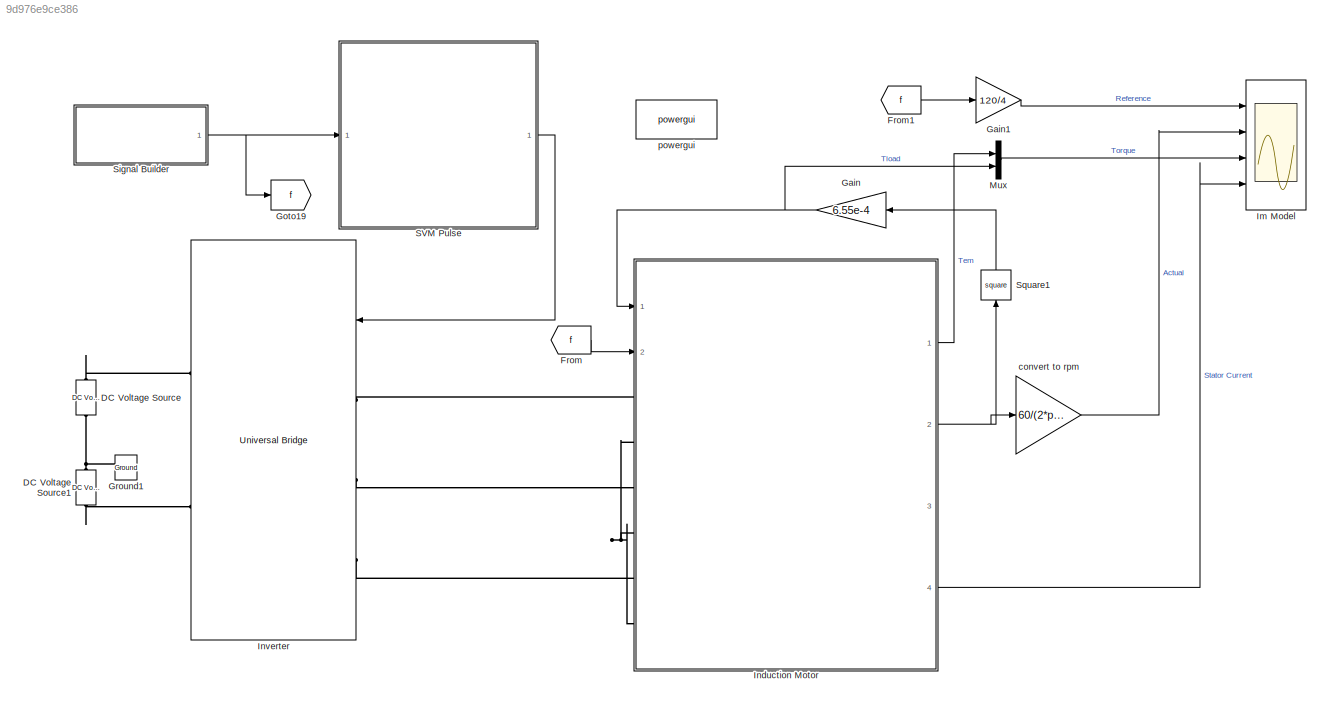
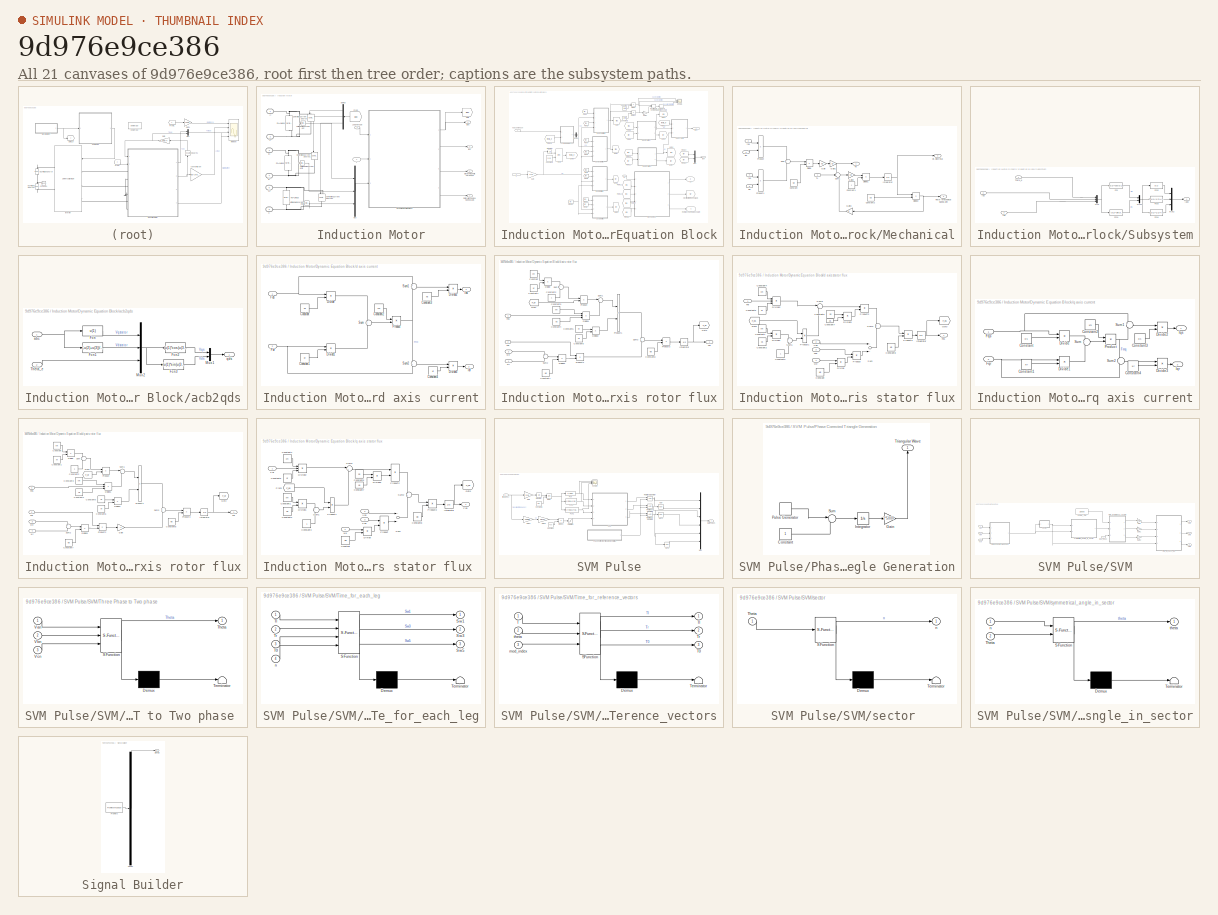
[diagram: thumbnail index - all 21 canvases of the model, root first then tree order]
MODEL slx_9d976e9ce386
KIND model
CONFIG AbsTol = auto
CONFIG EnableMultiTasking = off
CONFIG FixedStep = 1e-6
CONFIG MaxStep = auto
CONFIG MinStep = auto
CONFIG RelTol = 1e-3
CONFIG SampleTimeConstraint = Unconstrained
CONFIG Solver = FixedStepAuto
CONFIG SolverName = FixedStepAuto
CONFIG StartTime = 0.0
CONFIG StopTime = 4
BLOCK [Reference] DC Voltage Source  REF=powerlib/Electrical
Sources/DC Voltage Source
  Ports = [0, 0, 0, 0, 0, 1, 1]
  SourceBlock = powerlib/Electrical\nSources/DC Voltage Source
  SourceProductBaseCode = PS
  SourceProductName = Simscape Electrical
  SourceType = DC Voltage Source
BLOCK [Reference] DC Voltage Source1  REF=powerlib/Electrical
Sources/DC Voltage Source
  Ports = [0, 0, 0, 0, 0, 1, 1]
  SourceBlock = powerlib/Electrical\nSources/DC Voltage Source
  SourceProductBaseCode = PS
  SourceProductName = Simscape Electrical
  SourceType = DC Voltage Source
BLOCK [From] From
  GotoTag = f
BLOCK [From] From1
  GotoTag = f
BLOCK [Gain] Gain
  Gain = 6.55e-4
  OutDataTypeStr = Inherit: Inherit via internal rule
  ParamDataTypeStr = Inherit: Inherit via internal rule
  SaturateOnIntegerOverflow = off
BLOCK [Gain] Gain1
  Gain = 120/4
  OutDataTypeStr = Inherit: Inherit via internal rule
  ParamDataTypeStr = Inherit: Inherit via internal rule
  SaturateOnIntegerOverflow = off
BLOCK [Goto] Goto19
  GotoTag = f
BLOCK [Reference] Ground1  REF=powerlib/Elements/Ground
  Ports = [0, 0, 0, 0, 0, 1]
  SourceBlock = powerlib/Elements/Ground
  SourceProductBaseCode = PS
  SourceProductName = Simscape Electrical
  SourceType = Ground
BLOCK [Scope] Im Model
  Floating = off
  NumInputPorts = 4
  Ports = [4]
  ScopeSpecificationString = Simulink.scopes.TimeScopeBlockCfg('CurrentConfiguration', extmgr.ConfigurationSet(extmgr.Configuration('Core','General UI',true,'FigureColor',[0.941176470588235 0.941176470588235 0.941176470588235]),extmgr.Configuration('Core','Source UI',true),extmgr.Configuration('Sources','WiredSimulink',true,'DataLoggingVariableName','ScopeData2'),extmgr.Configuration('Visuals','Time Domain',true,'SerializedDi...<+4620ch>
BLOCK [SubSystem] Induction Motor
  Ports = [2, 4, 0, 0, 0, 6]
  RequestExecContextInheritance = off
BLOCK [Outport] Induction Motor/      Iabc    
  IconDisplay = Port number
  Port = 4
BLOCK [Outport] Induction Motor/ Electromagnetic Torque,Te 
  IconDisplay = Port number
BLOCK [Outport] Induction Motor/ Iqdr     
  IconDisplay = Port number
  Port = 3
BLOCK [Outport] Induction Motor/ Rotor Mechanical Speed,rad//s 
  IconDisplay = Port number
  Port = 2
BLOCK [PMIOPort] Induction Motor/A+
  Side = Left
  Tag = PMCPort
BLOCK [PMIOPort] Induction Motor/A-
  Port = 2
  Side = Left
  Tag = PMCPort
BLOCK [PMIOPort] Induction Motor/B+
  Port = 3
  Side = Left
  Tag = PMCPort
BLOCK [PMIOPort] Induction Motor/B-
  Port = 4
  Side = Left
  Tag = PMCPort
BLOCK [PMIOPort] Induction Motor/C+
  Port = 5
  Side = Left
  Tag = PMCPort
BLOCK [PMIOPort] Induction Motor/C-
  Port = 6
  Side = Left
  Tag = PMCPort
BLOCK [Reference] Induction Motor/Controlled Current Source  REF=powerlib/Electrical
Sources/Controlled Current Source
  Ports = [1, 0, 0, 0, 0, 1, 1]
  SourceBlock = powerlib/Electrical\nSources/Controlled Current Source
  SourceProductBaseCode = PS
  SourceProductName = Simscape Electrical
  SourceType = Controlled Current Source
BLOCK [Reference] Induction Motor/Controlled Current Source1  REF=powerlib/Electrical
Sources/Controlled Current Source
  Ports = [1, 0, 0, 0, 0, 1, 1]
  SourceBlock = powerlib/Electrical\nSources/Controlled Current Source
  SourceProductBaseCode = PS
  SourceProductName = Simscape Electrical
  SourceType = Controlled Current Source
BLOCK [Reference] Induction Motor/Controlled Current Source2  REF=powerlib/Electrical
Sources/Controlled Current Source
  Ports = [1, 0, 0, 0, 0, 1, 1]
  SourceBlock = powerlib/Electrical\nSources/Controlled Current Source
  SourceProductBaseCode = PS
  SourceProductName = Simscape Electrical
  SourceType = Controlled Current Source
BLOCK [Demux] Induction Motor/Demux
  DisplayOption = bar
  Outputs = 3
  Ports = [1, 3]
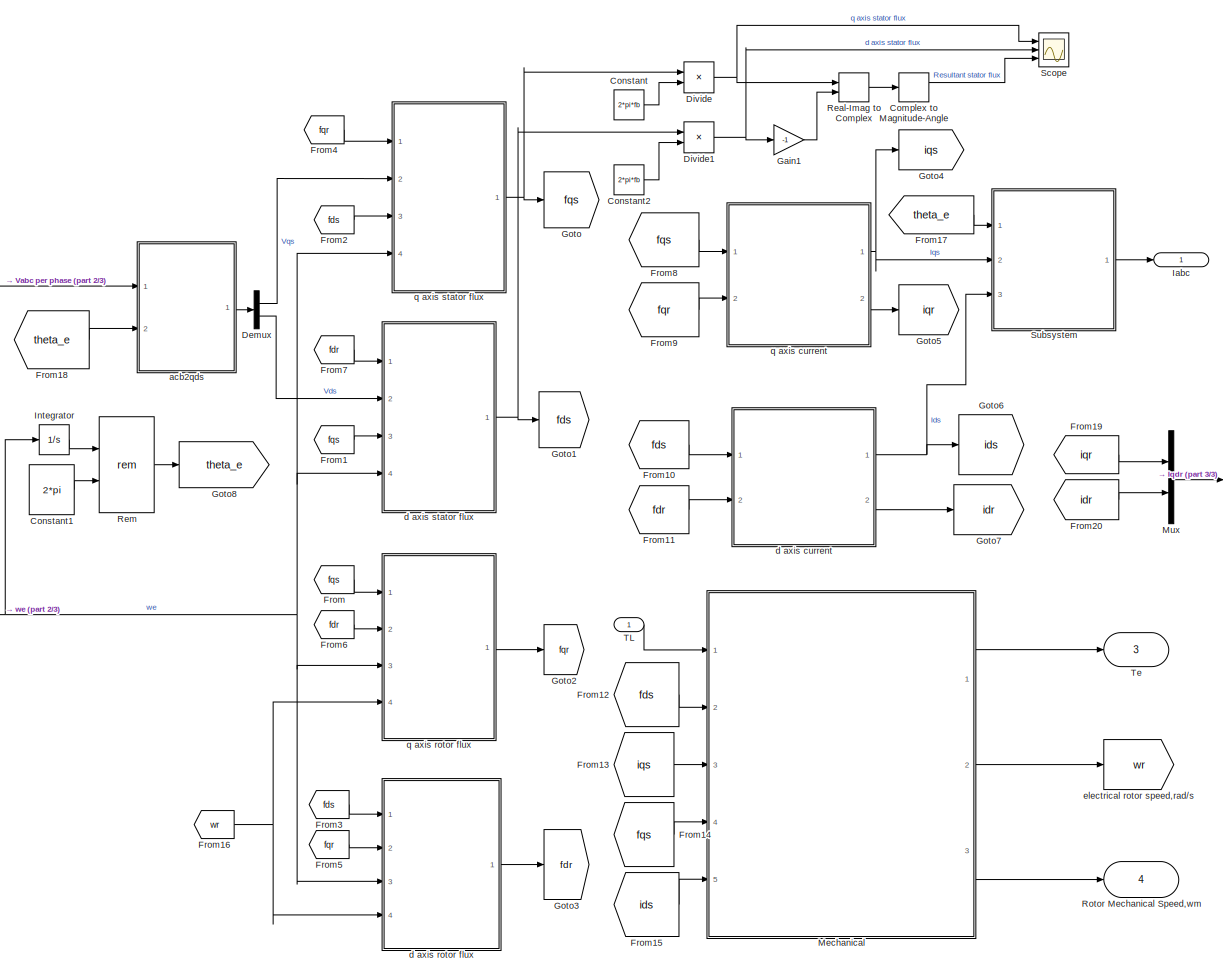
[diagram: Induction Motor/Dynamic Equation Block - part 1/3, most of the canvas]
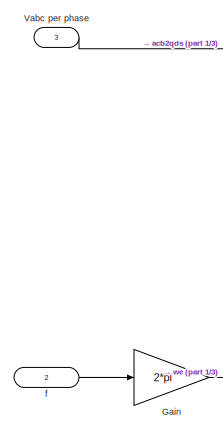
[diagram: Induction Motor/Dynamic Equation Block - part 2/3, middle left region]
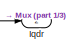
[diagram: Induction Motor/Dynamic Equation Block - part 3/3, middle right region]
BLOCK [SubSystem] Induction Motor/Dynamic Equation Block
  Ports = [3, 4]
  RequestExecContextInheritance = off
BLOCK [ComplexToMagnitudeAngle] Induction Motor/Dynamic Equation Block/Complex to Magnitude-Angle
  Ports = [1, 2]
BLOCK [Constant] Induction Motor/Dynamic Equation Block/Constant
  Value = 2*pi*fb
BLOCK [Constant] Induction Motor/Dynamic Equation Block/Constant1
  Value = 2*pi
BLOCK [Constant] Induction Motor/Dynamic Equation Block/Constant2
  Value = 2*pi*fb
BLOCK [Demux] Induction Motor/Dynamic Equation Block/Demux
  DisplayOption = bar
  Outputs = 2
  Ports = [1, 2]
BLOCK [Product] Induction Motor/Dynamic Equation Block/Divide
  InputSameDT = off
  Inputs = */
  OutDataTypeStr = Inherit: Inherit via internal rule
  Ports = [2, 1]
  RndMeth = Floor
  SaturateOnIntegerOverflow = off
BLOCK [Product] Induction Motor/Dynamic Equation Block/Divide1
  InputSameDT = off
  Inputs = */
  OutDataTypeStr = Inherit: Inherit via internal rule
  Ports = [2, 1]
  RndMeth = Floor
  SaturateOnIntegerOverflow = off
BLOCK [From] Induction Motor/Dynamic Equation Block/From
  GotoTag = fqs
BLOCK [From] Induction Motor/Dynamic Equation Block/From1
  GotoTag = fqs
BLOCK [From] Induction Motor/Dynamic Equation Block/From10
  GotoTag = fds
BLOCK [From] Induction Motor/Dynamic Equation Block/From11
  GotoTag = fdr
BLOCK [From] Induction Motor/Dynamic Equation Block/From12
  GotoTag = fds
BLOCK [From] Induction Motor/Dynamic Equation Block/From13
  GotoTag = iqs
BLOCK [From] Induction Motor/Dynamic Equation Block/From14
  GotoTag = fqs
BLOCK [From] Induction Motor/Dynamic Equation Block/From15
  GotoTag = ids
BLOCK [From] Induction Motor/Dynamic Equation Block/From16
  GotoTag = wr
BLOCK [From] Induction Motor/Dynamic Equation Block/From17
  GotoTag = theta_e
BLOCK [From] Induction Motor/Dynamic Equation Block/From18
  GotoTag = theta_e
BLOCK [From] Induction Motor/Dynamic Equation Block/From19
  GotoTag = iqr
BLOCK [From] Induction Motor/Dynamic Equation Block/From2
  GotoTag = fds
BLOCK [From] Induction Motor/Dynamic Equation Block/From20
  GotoTag = idr
BLOCK [From] Induction Motor/Dynamic Equation Block/From3
  GotoTag = fds
BLOCK [From] Induction Motor/Dynamic Equation Block/From4
  GotoTag = fqr
BLOCK [From] Induction Motor/Dynamic Equation Block/From5
  GotoTag = fqr
BLOCK [From] Induction Motor/Dynamic Equation Block/From6
  GotoTag = fdr
BLOCK [From] Induction Motor/Dynamic Equation Block/From7
  GotoTag = fdr
BLOCK [From] Induction Motor/Dynamic Equation Block/From8
  GotoTag = fqs
BLOCK [From] Induction Motor/Dynamic Equation Block/From9
  GotoTag = fqr
BLOCK [Gain] Induction Motor/Dynamic Equation Block/Gain
  Gain = 2*pi
  OutDataTypeStr = Inherit: Inherit via internal rule
  ParamDataTypeStr = Inherit: Inherit via internal rule
  SaturateOnIntegerOverflow = off
BLOCK [Gain] Induction Motor/Dynamic Equation Block/Gain1
  Gain = -1
  OutDataTypeStr = Inherit: Inherit via internal rule
  ParamDataTypeStr = Inherit: Inherit via internal rule
  SaturateOnIntegerOverflow = off
BLOCK [Goto] Induction Motor/Dynamic Equation Block/Goto
  GotoTag = fqs
BLOCK [Goto] Induction Motor/Dynamic Equation Block/Goto1
  GotoTag = fds
BLOCK [Goto] Induction Motor/Dynamic Equation Block/Goto2
  GotoTag = fqr
BLOCK [Goto] Induction Motor/Dynamic Equation Block/Goto3
  GotoTag = fdr
BLOCK [Goto] Induction Motor/Dynamic Equation Block/Goto4
  GotoTag = iqs
BLOCK [Goto] Induction Motor/Dynamic Equation Block/Goto5
  GotoTag = iqr
BLOCK [Goto] Induction Motor/Dynamic Equation Block/Goto6
  GotoTag = ids
BLOCK [Goto] Induction Motor/Dynamic Equation Block/Goto7
  GotoTag = idr
BLOCK [Goto] Induction Motor/Dynamic Equation Block/Goto8
  GotoTag = theta_e
BLOCK [Outport] Induction Motor/Dynamic Equation Block/Iabc
  IconDisplay = Port number
BLOCK [Integrator] Induction Motor/Dynamic Equation Block/Integrator
  Ports = [1, 1]
BLOCK [Outport] Induction Motor/Dynamic Equation Block/Iqdr 
  IconDisplay = Port number
  Port = 2
BLOCK [SubSystem] Induction Motor/Dynamic Equation Block/Mechanical
  Ports = [5, 3]
  RequestExecContextInheritance = off
BLOCK [Constant] Induction Motor/Dynamic Equation Block/Mechanical/Constant
  Value = wb
BLOCK [Constant] Induction Motor/Dynamic Equation Block/Mechanical/Constant1
  Value = J
BLOCK [Constant] Induction Motor/Dynamic Equation Block/Mechanical/Constant2
  Value = p/2
BLOCK [Product] Induction Motor/Dynamic Equation Block/Mechanical/Divide
  InputSameDT = off
  Inputs = */
  OutDataTypeStr = Inherit: Inherit via internal rule
  Ports = [2, 1]
  RndMeth = Floor
  SaturateOnIntegerOverflow = off
BLOCK [Product] Induction Motor/Dynamic Equation Block/Mechanical/Divide1
  InputSameDT = off
  Inputs = */
  OutDataTypeStr = Inherit: Inherit via internal rule
  Ports = [2, 1]
  RndMeth = Floor
  SaturateOnIntegerOverflow = off
BLOCK [Product] Induction Motor/Dynamic Equation Block/Mechanical/Divide2
  InputSameDT = off
  Inputs = */
  OutDataTypeStr = Inherit: Inherit via internal rule
  Ports = [2, 1]
  RndMeth = Floor
  SaturateOnIntegerOverflow = off
BLOCK [Gain] Induction Motor/Dynamic Equation Block/Mechanical/Gain
  Gain = p/2
  OutDataTypeStr = Inherit: Inherit via internal rule
  ParamDataTypeStr = Inherit: Inherit via internal rule
  SaturateOnIntegerOverflow = off
BLOCK [Gain] Induction Motor/Dynamic Equation Block/Mechanical/Gain1
  Gain = 3/2
  OutDataTypeStr = Inherit: Inherit via internal rule
  ParamDataTypeStr = Inherit: Inherit via internal rule
  SaturateOnIntegerOverflow = off
BLOCK [Gain] Induction Motor/Dynamic Equation Block/Mechanical/Gain2
  Gain = p/2
  OutDataTypeStr = Inherit: Inherit via internal rule
  ParamDataTypeStr = Inherit: Inherit via internal rule
  SaturateOnIntegerOverflow = off
BLOCK [Gain] Induction Motor/Dynamic Equation Block/Mechanical/Gain3
  Gain = D
  OutDataTypeStr = Inherit: Inherit via internal rule
  ParamDataTypeStr = Inherit: Inherit via internal rule
  SaturateOnIntegerOverflow = off
BLOCK [Integrator] Induction Motor/Dynamic Equation Block/Mechanical/Integrator
  Ports = [1, 1]
BLOCK [Product] Induction Motor/Dynamic Equation Block/Mechanical/Product
  InputSameDT = off
  OutDataTypeStr = Inherit: Inherit via internal rule
  Ports = [2, 1]
  RndMeth = Floor
  SaturateOnIntegerOverflow = off
BLOCK [Product] Induction Motor/Dynamic Equation Block/Mechanical/Product1
  InputSameDT = off
  OutDataTypeStr = Inherit: Inherit via internal rule
  Ports = [2, 1]
  RndMeth = Floor
  SaturateOnIntegerOverflow = off
BLOCK [Outport] Induction Motor/Dynamic Equation Block/Mechanical/Rotor Mechanical Speed,wm 
  IconDisplay = Port number
  Port = 3
BLOCK [Sum] Induction Motor/Dynamic Equation Block/Mechanical/Sum
  IconShape = round
  InputSameDT = off
  Inputs = +-
  OutDataTypeStr = Inherit: Inherit via internal rule
  Ports = [2, 1]
  SaturateOnIntegerOverflow = off
BLOCK [Sum] Induction Motor/Dynamic Equation Block/Mechanical/Sum1
  IconShape = round
  InputSameDT = off
  Inputs = +--
  OutDataTypeStr = Inherit: Inherit via internal rule
  Ports = [3, 1]
  SaturateOnIntegerOverflow = off
BLOCK [Inport] Induction Motor/Dynamic Equation Block/Mechanical/TL
  IconDisplay = Port number
BLOCK [Outport] Induction Motor/Dynamic Equation Block/Mechanical/Te
  IconDisplay = Port number
BLOCK [Inport] Induction Motor/Dynamic Equation Block/Mechanical/fds
  IconDisplay = Port number
  Port = 2
BLOCK [Inport] Induction Motor/Dynamic Equation Block/Mechanical/fqs
  IconDisplay = Port number
  Port = 4
BLOCK [Inport] Induction Motor/Dynamic Equation Block/Mechanical/ids
  IconDisplay = Port number
  Port = 5
BLOCK [Inport] Induction Motor/Dynamic Equation Block/Mechanical/iqs
  IconDisplay = Port number
  Port = 3
BLOCK [Outport] Induction Motor/Dynamic Equation Block/Mechanical/wr,electrical
  IconDisplay = Port number
  Port = 2
BLOCK [Mux] Induction Motor/Dynamic Equation Block/Mux
  DisplayOption = bar
  Inputs = 2
  Ports = [2, 1]
BLOCK [RealImagToComplex] Induction Motor/Dynamic Equation Block/Real-Imag to Complex
  Ports = [2, 1]
BLOCK [Math] Induction Motor/Dynamic Equation Block/Rem
  Operator = rem
  Ports = [2, 1]
BLOCK [Outport] Induction Motor/Dynamic Equation Block/Rotor Mechanical Speed,wm 
  IconDisplay = Port number
  Port = 4
BLOCK [Scope] Induction Motor/Dynamic Equation Block/Scope
  Floating = off
  NumInputPorts = 3
  Ports = [3]
  ScopeSpecificationString = Simulink.scopes.TimeScopeBlockCfg('CurrentConfiguration', extmgr.ConfigurationSet(extmgr.Configuration('Core','General UI',true,'FigureColor',[1 1 1]),extmgr.Configuration('Core','Source UI',true),extmgr.Configuration('Sources','WiredSimulink',true,'DataLoggingVariableName','ScopeData1'),extmgr.Configuration('Visuals','Time Domain',true,'SerializedDisplays',{struct('MinYLimReal','-0.75132','MaxYLi...<+3098ch>
BLOCK [SubSystem] Induction Motor/Dynamic Equation Block/Subsystem
  Ports = [3, 1]
  RequestExecContextInheritance = off
BLOCK [Fcn] Induction Motor/Dynamic Equation Block/Subsystem/Fcn
  Expr = (u(2)*cos(u(1)))+(u(3)*sin(u(1)))
BLOCK [Fcn] Induction Motor/Dynamic Equation Block/Subsystem/Fcn1
  Expr = (-u(2)*sin(u(1)))+(u(3)*cos(u(1)))
BLOCK [Fcn] Induction Motor/Dynamic Equation Block/Subsystem/Fcn2
  Expr = u(1)
BLOCK [Fcn] Induction Motor/Dynamic Equation Block/Subsystem/Fcn3
  Expr = (-u(1)*1/2)+(-sqrt(3)/2*u(2))
BLOCK [Fcn] Induction Motor/Dynamic Equation Block/Subsystem/Fcn4
  Expr = (-u(1)*1/2)+(sqrt(3)/2*u(2))
BLOCK [Outport] Induction Motor/Dynamic Equation Block/Subsystem/Iabc
  IconDisplay = Port number
BLOCK [Inport] Induction Motor/Dynamic Equation Block/Subsystem/Ids
  IconDisplay = Port number
  Port = 3
BLOCK [Inport] Induction Motor/Dynamic Equation Block/Subsystem/Iqs
  IconDisplay = Port number
  Port = 2
BLOCK [Mux] Induction Motor/Dynamic Equation Block/Subsystem/Mux
  DisplayOption = bar
  Inputs = 3
  Ports = [3, 1]
BLOCK [Mux] Induction Motor/Dynamic Equation Block/Subsystem/Mux1
  DisplayOption = bar
  Inputs = 2
  Ports = [2, 1]
BLOCK [Mux] Induction Motor/Dynamic Equation Block/Subsystem/Mux2
  DisplayOption = bar
  Inputs = 3
  Ports = [3, 1]
BLOCK [Inport] Induction Motor/Dynamic Equation Block/Subsystem/Theta_e
  IconDisplay = Port number
BLOCK [Inport] Induction Motor/Dynamic Equation Block/TL
  IconDisplay = Port number
BLOCK [Outport] Induction Motor/Dynamic Equation Block/Te
  IconDisplay = Port number
  Port = 3
BLOCK [Inport] Induction Motor/Dynamic Equation Block/Vabc per phase
  IconDisplay = Port number
  Port = 3
BLOCK [SubSystem] Induction Motor/Dynamic Equation Block/acb2qds
  Ports = [2, 1]
  RequestExecContextInheritance = off
BLOCK [Fcn] Induction Motor/Dynamic Equation Block/acb2qds/Fcn
  Expr = u(1)
BLOCK [Fcn] Induction Motor/Dynamic Equation Block/acb2qds/Fcn1
  Expr = (-u(2)+u(3))/sqrt(3)
BLOCK [Fcn] Induction Motor/Dynamic Equation Block/acb2qds/Fcn2
  Expr = (u(1)*cos(u(3)))-(u(2)*sin(u(3)))
BLOCK [Fcn] Induction Motor/Dynamic Equation Block/acb2qds/Fcn3
  Expr = (u(1)*sin(u(3)))+(u(2)*cos(u(3)))
BLOCK [Mux] Induction Motor/Dynamic Equation Block/acb2qds/Mux1
  DisplayOption = bar
  Inputs = 2
  Ports = [2, 1]
BLOCK [Mux] Induction Motor/Dynamic Equation Block/acb2qds/Mux2
  DisplayOption = bar
  Inputs = 3
  Ports = [3, 1]
BLOCK [Inport] Induction Motor/Dynamic Equation Block/acb2qds/Theta_e
  IconDisplay = Port number
  Port = 2
BLOCK [Inport] Induction Motor/Dynamic Equation Block/acb2qds/abc
  IconDisplay = Port number
BLOCK [Outport] Induction Motor/Dynamic Equation Block/acb2qds/qds
  IconDisplay = Port number
BLOCK [SubSystem] Induction Motor/Dynamic Equation Block/d axis current
  Ports = [2, 2]
  RequestExecContextInheritance = off
BLOCK [Constant] Induction Motor/Dynamic Equation Block/d axis current/Constant
  Value = xls
BLOCK [Constant] Induction Motor/Dynamic Equation Block/d axis current/Constant1
  Value = xlr
BLOCK [Constant] Induction Motor/Dynamic Equation Block/d axis current/Constant2
  Value = xm
BLOCK [Constant] Induction Motor/Dynamic Equation Block/d axis current/Constant3
  Value = xls
BLOCK [Constant] Induction Motor/Dynamic Equation Block/d axis current/Constant4
  Value = xlr
BLOCK [Product] Induction Motor/Dynamic Equation Block/d axis current/Divide
  InputSameDT = off
  Inputs = */
  OutDataTypeStr = Inherit: Inherit via internal rule
  Ports = [2, 1]
  RndMeth = Floor
  SaturateOnIntegerOverflow = off
BLOCK [Product] Induction Motor/Dynamic Equation Block/d axis current/Divide1
  InputSameDT = off
  Inputs = */
  OutDataTypeStr = Inherit: Inherit via internal rule
  Ports = [2, 1]
  RndMeth = Floor
  SaturateOnIntegerOverflow = off
BLOCK [Product] Induction Motor/Dynamic Equation Block/d axis current/Divide2
  InputSameDT = off
  Inputs = */
  OutDataTypeStr = Inherit: Inherit via internal rule
  Ports = [2, 1]
  RndMeth = Floor
  SaturateOnIntegerOverflow = off
BLOCK [Product] Induction Motor/Dynamic Equation Block/d axis current/Divide3
  InputSameDT = off
  Inputs = */
  OutDataTypeStr = Inherit: Inherit via internal rule
  Ports = [2, 1]
  RndMeth = Floor
  SaturateOnIntegerOverflow = off
BLOCK [Inport] Induction Motor/Dynamic Equation Block/d axis current/Fdr
  IconDisplay = Port number
  Port = 2
BLOCK [Inport] Induction Motor/Dynamic Equation Block/d axis current/Fds
  IconDisplay = Port number
BLOCK [Outport] Induction Motor/Dynamic Equation Block/d axis current/Idr
  IconDisplay = Port number
  Port = 2
BLOCK [Outport] Induction Motor/Dynamic Equation Block/d axis current/Ids
  IconDisplay = Port number
BLOCK [Product] Induction Motor/Dynamic Equation Block/d axis current/Product
  InputSameDT = off
  OutDataTypeStr = Inherit: Inherit via internal rule
  Ports = [2, 1]
  RndMeth = Floor
  SaturateOnIntegerOverflow = off
BLOCK [Sum] Induction Motor/Dynamic Equation Block/d axis current/Sum
  IconShape = round
  InputSameDT = off
  OutDataTypeStr = Inherit: Inherit via internal rule
  Ports = [2, 1]
  SaturateOnIntegerOverflow = off
BLOCK [Sum] Induction Motor/Dynamic Equation Block/d axis current/Sum1
  IconShape = round
  InputSameDT = off
  Inputs = +-
  OutDataTypeStr = Inherit: Inherit via internal rule
  Ports = [2, 1]
  SaturateOnIntegerOverflow = off
BLOCK [Sum] Induction Motor/Dynamic Equation Block/d axis current/Sum2
  IconShape = round
  InputSameDT = off
  Inputs = -+
  OutDataTypeStr = Inherit: Inherit via internal rule
  Ports = [2, 1]
  SaturateOnIntegerOverflow = off
BLOCK [SubSystem] Induction Motor/Dynamic Equation Block/d axis rotor flux
  Ports = [4, 1]
  RequestExecContextInheritance = off
BLOCK [Constant] Induction Motor/Dynamic Equation Block/d axis rotor flux/Constant
  Value = xm
BLOCK [Constant] Induction Motor/Dynamic Equation Block/d axis rotor flux/Constant1
  Value = xlr
BLOCK [Constant] Induction Motor/Dynamic Equation Block/d axis rotor flux/Constant2
BLOCK [Constant] Induction Motor/Dynamic Equation Block/d axis rotor flux/Constant3
  Value = xm
BLOCK [Constant] Induction Motor/Dynamic Equation Block/d axis rotor flux/Constant4
  Value = xls
BLOCK [Constant] Induction Motor/Dynamic Equation Block/d axis rotor flux/Constant5
  Value = Rr
BLOCK [Constant] Induction Motor/Dynamic Equation Block/d axis rotor flux/Constant6
  Value = xlr
BLOCK [Constant] Induction Motor/Dynamic Equation Block/d axis rotor flux/Constant7
  Value = wb
BLOCK [Constant] Induction Motor/Dynamic Equation Block/d axis rotor flux/Constant8
  Value = wb
BLOCK [Product] Induction Motor/Dynamic Equation Block/d axis rotor flux/Divide
  InputSameDT = off
  Inputs = */
  OutDataTypeStr = Inherit: Inherit via internal rule
  Ports = [2, 1]
  RndMeth = Floor
  SaturateOnIntegerOverflow = off
BLOCK [Product] Induction Motor/Dynamic Equation Block/d axis rotor flux/Divide1
  InputSameDT = off
  Inputs = **/
  OutDataTypeStr = Inherit: Inherit via internal rule
  Ports = [3, 1]
  RndMeth = Floor
  SaturateOnIntegerOverflow = off
BLOCK [Product] Induction Motor/Dynamic Equation Block/d axis rotor flux/Divide2
  InputSameDT = off
  Inputs = */
  OutDataTypeStr = Inherit: Inherit via internal rule
  Ports = [2, 1]
  RndMeth = Floor
  SaturateOnIntegerOverflow = off
BLOCK [Product] Induction Motor/Dynamic Equation Block/d axis rotor flux/Divide3
  InputSameDT = off
  Inputs = */
  OutDataTypeStr = Inherit: Inherit via internal rule
  Ports = [2, 1]
  RndMeth = Floor
  SaturateOnIntegerOverflow = off
BLOCK [Outport] Induction Motor/Dynamic Equation Block/d axis rotor flux/Fdr
  IconDisplay = Port number
BLOCK [Inport] Induction Motor/Dynamic Equation Block/d axis rotor flux/Fds  
  IconDisplay = Port number
BLOCK [Inport] Induction Motor/Dynamic Equation Block/d axis rotor flux/Fqr  
  IconDisplay = Port number
  Port = 2
BLOCK [From] Induction Motor/Dynamic Equation Block/d axis rotor flux/From
  GotoTag = F_dr
BLOCK [Goto] Induction Motor/Dynamic Equation Block/d axis rotor flux/Goto
  GotoTag = F_dr
BLOCK [Integrator] Induction Motor/Dynamic Equation Block/d axis rotor flux/Integrator
  Ports = [1, 1]
BLOCK [Product] Induction Motor/Dynamic Equation Block/d axis rotor flux/Product
  InputSameDT = off
  OutDataTypeStr = Inherit: Inherit via internal rule
  Ports = [2, 1]
  RndMeth = Floor
  SaturateOnIntegerOverflow = off
BLOCK [Product] Induction Motor/Dynamic Equation Block/d axis rotor flux/Product1
  InputSameDT = off
  OutDataTypeStr = Inherit: Inherit via internal rule
  Ports = [2, 1]
  RndMeth = Floor
  SaturateOnIntegerOverflow = off
BLOCK [Product] Induction Motor/Dynamic Equation Block/d axis rotor flux/Product2
  InputSameDT = off
  OutDataTypeStr = Inherit: Inherit via internal rule
  Ports = [2, 1]
  RndMeth = Floor
  SaturateOnIntegerOverflow = off
BLOCK [Product] Induction Motor/Dynamic Equation Block/d axis rotor flux/Product3
  InputSameDT = off
  OutDataTypeStr = Inherit: Inherit via internal rule
  Ports = [2, 1]
  RndMeth = Floor
  SaturateOnIntegerOverflow = off
BLOCK [Sum] Induction Motor/Dynamic Equation Block/d axis rotor flux/Sum
  IconShape = round
  InputSameDT = off
  Inputs = +-
  OutDataTypeStr = Inherit: Inherit via internal rule
  Ports = [2, 1]
  SaturateOnIntegerOverflow = off
BLOCK [Sum] Induction Motor/Dynamic Equation Block/d axis rotor flux/Sum1
  IconShape = round
  InputSameDT = off
  Inputs = |++
  OutDataTypeStr = Inherit: Inherit via internal rule
  Ports = [2, 1]
  SaturateOnIntegerOverflow = off
BLOCK [Sum] Induction Motor/Dynamic Equation Block/d axis rotor flux/Sum2
  IconShape = round
  InputSameDT = off
  Inputs = +-
  OutDataTypeStr = Inherit: Inherit via internal rule
  Ports = [2, 1]
  SaturateOnIntegerOverflow = off
BLOCK [Sum] Induction Motor/Dynamic Equation Block/d axis rotor flux/Sum3
  IconShape = round
  InputSameDT = off
  OutDataTypeStr = Inherit: Inherit via internal rule
  Ports = [2, 1]
  SaturateOnIntegerOverflow = off
BLOCK [Inport] Induction Motor/Dynamic Equation Block/d axis rotor flux/we 
  IconDisplay = Port number
  Port = 3
BLOCK [Inport] Induction Motor/Dynamic Equation Block/d axis rotor flux/wr
  IconDisplay = Port number
  Port = 4
BLOCK [SubSystem] Induction Motor/Dynamic Equation Block/d axis stator flux
  Ports = [4, 1]
  RequestExecContextInheritance = off
BLOCK [Constant] Induction Motor/Dynamic Equation Block/d axis stator flux/Constant
  Value = wb
BLOCK [Constant] Induction Motor/Dynamic Equation Block/d axis stator flux/Constant1
  Value = xm
BLOCK [Constant] Induction Motor/Dynamic Equation Block/d axis stator flux/Constant2
  Value = xls
BLOCK [Constant] Induction Motor/Dynamic Equation Block/d axis stator flux/Constant3
BLOCK [Constant] Induction Motor/Dynamic Equation Block/d axis stator flux/Constant4
  Value = xm
BLOCK [Constant] Induction Motor/Dynamic Equation Block/d axis stator flux/Constant5
  Value = xlr
BLOCK [Constant] Induction Motor/Dynamic Equation Block/d axis stator flux/Constant6
  Value = Rs
BLOCK [Constant] Induction Motor/Dynamic Equation Block/d axis stator flux/Constant7
  Value = xls
BLOCK [Constant] Induction Motor/Dynamic Equation Block/d axis stator flux/Constant8
  Value = wb
BLOCK [Product] Induction Motor/Dynamic Equation Block/d axis stator flux/Divide
  InputSameDT = off
  Inputs = */
  OutDataTypeStr = Inherit: Inherit via internal rule
  Ports = [2, 1]
  RndMeth = Floor
  SaturateOnIntegerOverflow = off
BLOCK [Product] Induction Motor/Dynamic Equation Block/d axis stator flux/Divide1
  InputSameDT = off
  Inputs = */
  OutDataTypeStr = Inherit: Inherit via internal rule
  Ports = [2, 1]
  RndMeth = Floor
  SaturateOnIntegerOverflow = off
BLOCK [Product] Induction Motor/Dynamic Equation Block/d axis stator flux/Divide2
  InputSameDT = off
  Inputs = **/
  OutDataTypeStr = Inherit: Inherit via internal rule
  Ports = [3, 1]
  RndMeth = Floor
  SaturateOnIntegerOverflow = off
BLOCK [Product] Induction Motor/Dynamic Equation Block/d axis stator flux/Divide3
  InputSameDT = off
  Inputs = */
  OutDataTypeStr = Inherit: Inherit via internal rule
  Ports = [2, 1]
  RndMeth = Floor
  SaturateOnIntegerOverflow = off
BLOCK [Inport] Induction Motor/Dynamic Equation Block/d axis stator flux/Fdr 
  IconDisplay = Port number
BLOCK [Outport] Induction Motor/Dynamic Equation Block/d axis stator flux/Fds
  IconDisplay = Port number
BLOCK [Inport] Induction Motor/Dynamic Equation Block/d axis stator flux/Fqs 
  IconDisplay = Port number
  Port = 3
BLOCK [From] Induction Motor/Dynamic Equation Block/d axis stator flux/From
  GotoTag = F_ds
BLOCK [Goto] Induction Motor/Dynamic Equation Block/d axis stator flux/Goto
  GotoTag = F_ds
BLOCK [Integrator] Induction Motor/Dynamic Equation Block/d axis stator flux/Integrator
  Ports = [1, 1]
BLOCK [Product] Induction Motor/Dynamic Equation Block/d axis stator flux/Product
  InputSameDT = off
  OutDataTypeStr = Inherit: Inherit via internal rule
  Ports = [2, 1]
  RndMeth = Floor
  SaturateOnIntegerOverflow = off
BLOCK [Product] Induction Motor/Dynamic Equation Block/d axis stator flux/Product1
  InputSameDT = off
  OutDataTypeStr = Inherit: Inherit via internal rule
  Ports = [2, 1]
  RndMeth = Floor
  SaturateOnIntegerOverflow = off
BLOCK [Product] Induction Motor/Dynamic Equation Block/d axis stator flux/Product2
  InputSameDT = off
  OutDataTypeStr = Inherit: Inherit via internal rule
  Ports = [2, 1]
  RndMeth = Floor
  SaturateOnIntegerOverflow = off
BLOCK [Product] Induction Motor/Dynamic Equation Block/d axis stator flux/Product3
  InputSameDT = off
  OutDataTypeStr = Inherit: Inherit via internal rule
  Ports = [2, 1]
  RndMeth = Floor
  SaturateOnIntegerOverflow = off
BLOCK [Sum] Induction Motor/Dynamic Equation Block/d axis stator flux/Sum
  InputSameDT = off
  OutDataTypeStr = Inherit: Inherit via internal rule
  Ports = [2, 1]
  SaturateOnIntegerOverflow = off
BLOCK [Sum] Induction Motor/Dynamic Equation Block/d axis stator flux/Sum1
  IconShape = round
  InputSameDT = off
  Inputs = +-
  OutDataTypeStr = Inherit: Inherit via internal rule
  Ports = [2, 1]
  SaturateOnIntegerOverflow = off
BLOCK [Sum] Induction Motor/Dynamic Equation Block/d axis stator flux/Sum2
  IconShape = round
  InputSameDT = off
  OutDataTypeStr = Inherit: Inherit via internal rule
  Ports = [2, 1]
  SaturateOnIntegerOverflow = off
BLOCK [Sum] Induction Motor/Dynamic Equation Block/d axis stator flux/Sum3
  IconShape = round
  InputSameDT = off
  Inputs = |++
  OutDataTypeStr = Inherit: Inherit via internal rule
  Ports = [2, 1]
  SaturateOnIntegerOverflow = off
BLOCK [Inport] Induction Motor/Dynamic Equation Block/d axis stator flux/Vds
  IconDisplay = Port number
  Port = 2
BLOCK [Inport] Induction Motor/Dynamic Equation Block/d axis stator flux/we
  IconDisplay = Port number
  Port = 4
BLOCK [Goto] Induction Motor/Dynamic Equation Block/electrical rotor speed,rad//s
  GotoTag = wr
BLOCK [Inport] Induction Motor/Dynamic Equation Block/f
  IconDisplay = Port number
  Port = 2
BLOCK [SubSystem] Induction Motor/Dynamic Equation Block/q axis current
  Ports = [2, 2]
  RequestExecContextInheritance = off
BLOCK [Constant] Induction Motor/Dynamic Equation Block/q axis current/Constant
  Value = xls
BLOCK [Constant] Induction Motor/Dynamic Equation Block/q axis current/Constant1
  Value = xlr
BLOCK [Constant] Induction Motor/Dynamic Equation Block/q axis current/Constant2
  Value = xm
BLOCK [Constant] Induction Motor/Dynamic Equation Block/q axis current/Constant3
  Value = xls
BLOCK [Constant] Induction Motor/Dynamic Equation Block/q axis current/Constant4
  Value = xlr
BLOCK [Product] Induction Motor/Dynamic Equation Block/q axis current/Divide
  InputSameDT = off
  Inputs = */
  OutDataTypeStr = Inherit: Inherit via internal rule
  Ports = [2, 1]
  RndMeth = Floor
  SaturateOnIntegerOverflow = off
BLOCK [Product] Induction Motor/Dynamic Equation Block/q axis current/Divide1
  InputSameDT = off
  Inputs = */
  OutDataTypeStr = Inherit: Inherit via internal rule
  Ports = [2, 1]
  RndMeth = Floor
  SaturateOnIntegerOverflow = off
BLOCK [Product] Induction Motor/Dynamic Equation Block/q axis current/Divide2
  InputSameDT = off
  Inputs = */
  OutDataTypeStr = Inherit: Inherit via internal rule
  Ports = [2, 1]
  RndMeth = Floor
  SaturateOnIntegerOverflow = off
BLOCK [Product] Induction Motor/Dynamic Equation Block/q axis current/Divide3
  InputSameDT = off
  Inputs = */
  OutDataTypeStr = Inherit: Inherit via internal rule
  Ports = [2, 1]
  RndMeth = Floor
  SaturateOnIntegerOverflow = off
BLOCK [Inport] Induction Motor/Dynamic Equation Block/q axis current/Fqr
  IconDisplay = Port number
  Port = 2
BLOCK [Inport] Induction Motor/Dynamic Equation Block/q axis current/Fqs
  IconDisplay = Port number
BLOCK [Outport] Induction Motor/Dynamic Equation Block/q axis current/Iqr
  IconDisplay = Port number
  Port = 2
BLOCK [Outport] Induction Motor/Dynamic Equation Block/q axis current/Iqs
  IconDisplay = Port number
BLOCK [Product] Induction Motor/Dynamic Equation Block/q axis current/Product
  InputSameDT = off
  OutDataTypeStr = Inherit: Inherit via internal rule
  Ports = [2, 1]
  RndMeth = Floor
  SaturateOnIntegerOverflow = off
BLOCK [Sum] Induction Motor/Dynamic Equation Block/q axis current/Sum
  IconShape = round
  InputSameDT = off
  OutDataTypeStr = Inherit: Inherit via internal rule
  Ports = [2, 1]
  SaturateOnIntegerOverflow = off
BLOCK [Sum] Induction Motor/Dynamic Equation Block/q axis current/Sum1
  IconShape = round
  InputSameDT = off
  Inputs = +-
  OutDataTypeStr = Inherit: Inherit via internal rule
  Ports = [2, 1]
  SaturateOnIntegerOverflow = off
BLOCK [Sum] Induction Motor/Dynamic Equation Block/q axis current/Sum2
  IconShape = round
  InputSameDT = off
  Inputs = -+
  OutDataTypeStr = Inherit: Inherit via internal rule
  Ports = [2, 1]
  SaturateOnIntegerOverflow = off
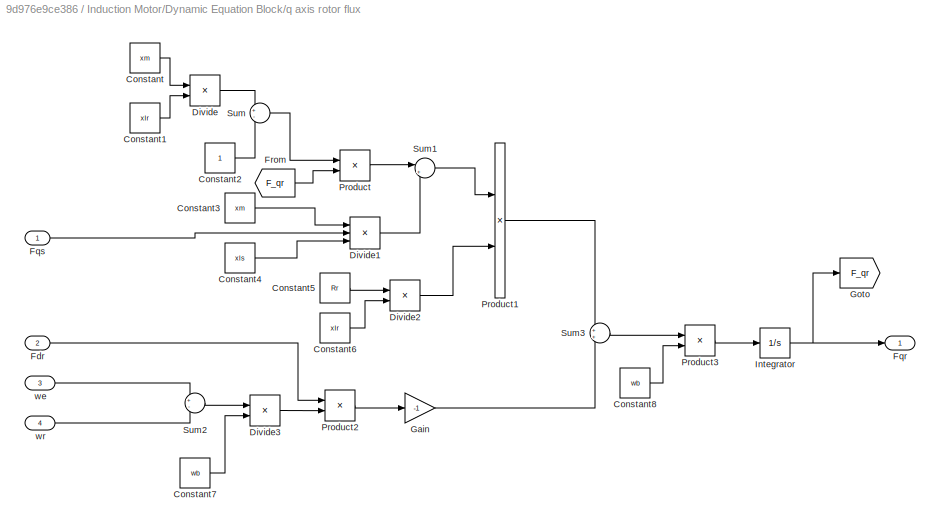
BLOCK [SubSystem] Induction Motor/Dynamic Equation Block/q axis rotor flux
  Ports = [4, 1]
  RequestExecContextInheritance = off
BLOCK [Constant] Induction Motor/Dynamic Equation Block/q axis rotor flux/Constant
  Value = xm
BLOCK [Constant] Induction Motor/Dynamic Equation Block/q axis rotor flux/Constant1
  Value = xlr
BLOCK [Constant] Induction Motor/Dynamic Equation Block/q axis rotor flux/Constant2
BLOCK [Constant] Induction Motor/Dynamic Equation Block/q axis rotor flux/Constant3
  Value = xm
BLOCK [Constant] Induction Motor/Dynamic Equation Block/q axis rotor flux/Constant4
  Value = xls
BLOCK [Constant] Induction Motor/Dynamic Equation Block/q axis rotor flux/Constant5
  Value = Rr
BLOCK [Constant] Induction Motor/Dynamic Equation Block/q axis rotor flux/Constant6
  Value = xlr
BLOCK [Constant] Induction Motor/Dynamic Equation Block/q axis rotor flux/Constant7
  Value = wb
BLOCK [Constant] Induction Motor/Dynamic Equation Block/q axis rotor flux/Constant8
  Value = wb
BLOCK [Product] Induction Motor/Dynamic Equation Block/q axis rotor flux/Divide
  InputSameDT = off
  Inputs = */
  OutDataTypeStr = Inherit: Inherit via internal rule
  Ports = [2, 1]
  RndMeth = Floor
  SaturateOnIntegerOverflow = off
BLOCK [Product] Induction Motor/Dynamic Equation Block/q axis rotor flux/Divide1
  InputSameDT = off
  Inputs = **/
  OutDataTypeStr = Inherit: Inherit via internal rule
  Ports = [3, 1]
  RndMeth = Floor
  SaturateOnIntegerOverflow = off
BLOCK [Product] Induction Motor/Dynamic Equation Block/q axis rotor flux/Divide2
  InputSameDT = off
  Inputs = */
  OutDataTypeStr = Inherit: Inherit via internal rule
  Ports = [2, 1]
  RndMeth = Floor
  SaturateOnIntegerOverflow = off
BLOCK [Product] Induction Motor/Dynamic Equation Block/q axis rotor flux/Divide3
  InputSameDT = off
  Inputs = */
  OutDataTypeStr = Inherit: Inherit via internal rule
  Ports = [2, 1]
  RndMeth = Floor
  SaturateOnIntegerOverflow = off
BLOCK [Inport] Induction Motor/Dynamic Equation Block/q axis rotor flux/Fdr 
  IconDisplay = Port number
  Port = 2
BLOCK [Outport] Induction Motor/Dynamic Equation Block/q axis rotor flux/Fqr
  IconDisplay = Port number
BLOCK [Inport] Induction Motor/Dynamic Equation Block/q axis rotor flux/Fqs  
  IconDisplay = Port number
BLOCK [From] Induction Motor/Dynamic Equation Block/q axis rotor flux/From
  GotoTag = F_qr
BLOCK [Gain] Induction Motor/Dynamic Equation Block/q axis rotor flux/Gain
  Gain = -1
  OutDataTypeStr = Inherit: Inherit via internal rule
  ParamDataTypeStr = Inherit: Inherit via internal rule
  SaturateOnIntegerOverflow = off
BLOCK [Goto] Induction Motor/Dynamic Equation Block/q axis rotor flux/Goto
  GotoTag = F_qr
BLOCK [Integrator] Induction Motor/Dynamic Equation Block/q axis rotor flux/Integrator
  Ports = [1, 1]
BLOCK [Product] Induction Motor/Dynamic Equation Block/q axis rotor flux/Product
  InputSameDT = off
  OutDataTypeStr = Inherit: Inherit via internal rule
  Ports = [2, 1]
  RndMeth = Floor
  SaturateOnIntegerOverflow = off
BLOCK [Product] Induction Motor/Dynamic Equation Block/q axis rotor flux/Product1
  InputSameDT = off
  OutDataTypeStr = Inherit: Inherit via internal rule
  Ports = [2, 1]
  RndMeth = Floor
  SaturateOnIntegerOverflow = off
BLOCK [Product] Induction Motor/Dynamic Equation Block/q axis rotor flux/Product2
  InputSameDT = off
  OutDataTypeStr = Inherit: Inherit via internal rule
  Ports = [2, 1]
  RndMeth = Floor
  SaturateOnIntegerOverflow = off
BLOCK [Product] Induction Motor/Dynamic Equation Block/q axis rotor flux/Product3
  InputSameDT = off
  OutDataTypeStr = Inherit: Inherit via internal rule
  Ports = [2, 1]
  RndMeth = Floor
  SaturateOnIntegerOverflow = off
BLOCK [Sum] Induction Motor/Dynamic Equation Block/q axis rotor flux/Sum
  IconShape = round
  InputSameDT = off
  Inputs = +-
  OutDataTypeStr = Inherit: Inherit via internal rule
  Ports = [2, 1]
  SaturateOnIntegerOverflow = off
BLOCK [Sum] Induction Motor/Dynamic Equation Block/q axis rotor flux/Sum1
  IconShape = round
  InputSameDT = off
  Inputs = |++
  OutDataTypeStr = Inherit: Inherit via internal rule
  Ports = [2, 1]
  SaturateOnIntegerOverflow = off
BLOCK [Sum] Induction Motor/Dynamic Equation Block/q axis rotor flux/Sum2
  IconShape = round
  InputSameDT = off
  Inputs = +-
  OutDataTypeStr = Inherit: Inherit via internal rule
  Ports = [2, 1]
  SaturateOnIntegerOverflow = off
BLOCK [Sum] Induction Motor/Dynamic Equation Block/q axis rotor flux/Sum3
  IconShape = round
  InputSameDT = off
  OutDataTypeStr = Inherit: Inherit via internal rule
  Ports = [2, 1]
  SaturateOnIntegerOverflow = off
BLOCK [Inport] Induction Motor/Dynamic Equation Block/q axis rotor flux/we 
  IconDisplay = Port number
  Port = 3
BLOCK [Inport] Induction Motor/Dynamic Equation Block/q axis rotor flux/wr
  IconDisplay = Port number
  Port = 4
BLOCK [SubSystem] Induction Motor/Dynamic Equation Block/q axis stator flux 
  Ports = [4, 1]
  RequestExecContextInheritance = off
BLOCK [Constant] Induction Motor/Dynamic Equation Block/q axis stator flux /Constant
  Value = wb
BLOCK [Constant] Induction Motor/Dynamic Equation Block/q axis stator flux /Constant1
  Value = xm
BLOCK [Constant] Induction Motor/Dynamic Equation Block/q axis stator flux /Constant2
  Value = xls
BLOCK [Constant] Induction Motor/Dynamic Equation Block/q axis stator flux /Constant3
BLOCK [Constant] Induction Motor/Dynamic Equation Block/q axis stator flux /Constant4
  Value = xm
BLOCK [Constant] Induction Motor/Dynamic Equation Block/q axis stator flux /Constant5
  Value = xlr
BLOCK [Constant] Induction Motor/Dynamic Equation Block/q axis stator flux /Constant6
  Value = Rs
BLOCK [Constant] Induction Motor/Dynamic Equation Block/q axis stator flux /Constant7
  Value = xls
BLOCK [Constant] Induction Motor/Dynamic Equation Block/q axis stator flux /Constant8
  Value = wb
BLOCK [Product] Induction Motor/Dynamic Equation Block/q axis stator flux /Divide
  InputSameDT = off
  Inputs = */
  OutDataTypeStr = Inherit: Inherit via internal rule
  Ports = [2, 1]
  RndMeth = Floor
  SaturateOnIntegerOverflow = off
BLOCK [Product] Induction Motor/Dynamic Equation Block/q axis stator flux /Divide1
  InputSameDT = off
  Inputs = */
  OutDataTypeStr = Inherit: Inherit via internal rule
  Ports = [2, 1]
  RndMeth = Floor
  SaturateOnIntegerOverflow = off
BLOCK [Product] Induction Motor/Dynamic Equation Block/q axis stator flux /Divide2
  InputSameDT = off
  Inputs = **/
  OutDataTypeStr = Inherit: Inherit via internal rule
  Ports = [3, 1]
  RndMeth = Floor
  SaturateOnIntegerOverflow = off
BLOCK [Product] Induction Motor/Dynamic Equation Block/q axis stator flux /Divide3
  InputSameDT = off
  Inputs = */
  OutDataTypeStr = Inherit: Inherit via internal rule
  Ports = [2, 1]
  RndMeth = Floor
  SaturateOnIntegerOverflow = off
BLOCK [Inport] Induction Motor/Dynamic Equation Block/q axis stator flux /Fds
  IconDisplay = Port number
  Port = 3
BLOCK [Inport] Induction Motor/Dynamic Equation Block/q axis stator flux /Fqr
  IconDisplay = Port number
BLOCK [Outport] Induction Motor/Dynamic Equation Block/q axis stator flux /Fqs
  IconDisplay = Port number
BLOCK [From] Induction Motor/Dynamic Equation Block/q axis stator flux /From
  GotoTag = F_qs
BLOCK [Goto] Induction Motor/Dynamic Equation Block/q axis stator flux /Goto
  GotoTag = F_qs
BLOCK [Integrator] Induction Motor/Dynamic Equation Block/q axis stator flux /Integrator
  Ports = [1, 1]
BLOCK [Product] Induction Motor/Dynamic Equation Block/q axis stator flux /Product
  InputSameDT = off
  OutDataTypeStr = Inherit: Inherit via internal rule
  Ports = [2, 1]
  RndMeth = Floor
  SaturateOnIntegerOverflow = off
BLOCK [Product] Induction Motor/Dynamic Equation Block/q axis stator flux /Product1
  InputSameDT = off
  OutDataTypeStr = Inherit: Inherit via internal rule
  Ports = [2, 1]
  RndMeth = Floor
  SaturateOnIntegerOverflow = off
BLOCK [Product] Induction Motor/Dynamic Equation Block/q axis stator flux /Product2
  InputSameDT = off
  OutDataTypeStr = Inherit: Inherit via internal rule
  Ports = [2, 1]
  RndMeth = Floor
  SaturateOnIntegerOverflow = off
BLOCK [Product] Induction Motor/Dynamic Equation Block/q axis stator flux /Product3
  InputSameDT = off
  OutDataTypeStr = Inherit: Inherit via internal rule
  Ports = [2, 1]
  RndMeth = Floor
  SaturateOnIntegerOverflow = off
BLOCK [Sum] Induction Motor/Dynamic Equation Block/q axis stator flux /Sum
  InputSameDT = off
  Inputs = +-
  OutDataTypeStr = Inherit: Inherit via internal rule
  Ports = [2, 1]
  SaturateOnIntegerOverflow = off
BLOCK [Sum] Induction Motor/Dynamic Equation Block/q axis stator flux /Sum1
  IconShape = round
  InputSameDT = off
  Inputs = +-
  OutDataTypeStr = Inherit: Inherit via internal rule
  Ports = [2, 1]
  SaturateOnIntegerOverflow = off
BLOCK [Sum] Induction Motor/Dynamic Equation Block/q axis stator flux /Sum2
  IconShape = round
  InputSameDT = off
  OutDataTypeStr = Inherit: Inherit via internal rule
  Ports = [2, 1]
  SaturateOnIntegerOverflow = off
BLOCK [Sum] Induction Motor/Dynamic Equation Block/q axis stator flux /Sum3
  IconShape = round
  InputSameDT = off
  Inputs = |++
  OutDataTypeStr = Inherit: Inherit via internal rule
  Ports = [2, 1]
  SaturateOnIntegerOverflow = off
BLOCK [Inport] Induction Motor/Dynamic Equation Block/q axis stator flux /Vqs
  IconDisplay = Port number
  Port = 2
BLOCK [Inport] Induction Motor/Dynamic Equation Block/q axis stator flux /we
  IconDisplay = Port number
  Port = 4
BLOCK [From] Induction Motor/From
  GotoTag = iabc
BLOCK [Goto] Induction Motor/Goto
  GotoTag = iabc
BLOCK [Inport] Induction Motor/Load Torque
  IconDisplay = Port number
BLOCK [Mux] Induction Motor/Mux
  DisplayOption = bar
  Inputs = 3
  Ports = [3, 1]
BLOCK [Reference] Induction Motor/R1=1Mega  REF=powerlib/Elements/Series RLC Branch
  Ports = [0, 0, 0, 0, 0, 1, 1]
  SourceBlock = powerlib/Elements/Series RLC Branch
  SourceProductBaseCode = PS
  SourceProductName = Simscape Electrical
  SourceType = Series RLC Branch
BLOCK [Reference] Induction Motor/R2=1Mega  REF=powerlib/Elements/Series RLC Branch
  Ports = [0, 0, 0, 0, 0, 1, 1]
  SourceBlock = powerlib/Elements/Series RLC Branch
  SourceProductBaseCode = PS
  SourceProductName = Simscape Electrical
  SourceType = Series RLC Branch
BLOCK [Reference] Induction Motor/R3=1Mega  REF=powerlib/Elements/Series RLC Branch
  Ports = [0, 0, 0, 0, 0, 1, 1]
  SourceBlock = powerlib/Elements/Series RLC Branch
  SourceProductBaseCode = PS
  SourceProductName = Simscape Electrical
  SourceType = Series RLC Branch
BLOCK [Reference] Induction Motor/Voltage Measurement  REF=powerlib/Measurements/Voltage Measurement
  Ports = [0, 1, 0, 0, 0, 2]
  SourceBlock = powerlib/Measurements/Voltage Measurement
  SourceProductBaseCode = PS
  SourceProductName = Simscape Electrical
  SourceType = Voltage Measurement
  UserDataPersistent = on
BLOCK [Reference] Induction Motor/Voltage Measurement1  REF=powerlib/Measurements/Voltage Measurement
  Ports = [0, 1, 0, 0, 0, 2]
  SourceBlock = powerlib/Measurements/Voltage Measurement
  SourceProductBaseCode = PS
  SourceProductName = Simscape Electrical
  SourceType = Voltage Measurement
  UserDataPersistent = on
BLOCK [Reference] Induction Motor/Voltage Measurement2  REF=powerlib/Measurements/Voltage Measurement
  Ports = [0, 1, 0, 0, 0, 2]
  SourceBlock = powerlib/Measurements/Voltage Measurement
  SourceProductBaseCode = PS
  SourceProductName = Simscape Electrical
  SourceType = Voltage Measurement
  UserDataPersistent = on
BLOCK [Inport] Induction Motor/f 
  IconDisplay = Port number
  Port = 2
BLOCK [Reference] Inverter  REF=powerlib/Power
Electronics/Universal Bridge
  Ports = [1, 0, 0, 0, 0, 3, 2]
  SourceBlock = powerlib/Power\nElectronics/Universal Bridge
  SourceProductBaseCode = PS
  SourceProductName = Simscape Electrical
  SourceType = Universal Bridge
BLOCK [Mux] Mux
  DisplayOption = bar
  Inputs = 2
  Ports = [2, 1]
BLOCK [SubSystem] SVM Pulse
  Ports = [1, 1]
  RequestExecContextInheritance = off
BLOCK [Constant] SVM Pulse/Constant
  Value = 400
BLOCK [Constant] SVM Pulse/Constant1
  Value = 2*pi
BLOCK [Product] SVM Pulse/Divide1
  InputSameDT = off
  Inputs = */
  OutDataTypeStr = Inherit: Inherit via internal rule
  Ports = [2, 1]
  RndMeth = Floor
  SaturateOnIntegerOverflow = off
BLOCK [Fcn] SVM Pulse/Fcn
  Expr = 1*sin(u)
BLOCK [Fcn] SVM Pulse/Fcn1
  Expr = 1*sin(u+4*pi/3)
BLOCK [Fcn] SVM Pulse/Fcn2
  Expr = 1*sin(u+2*pi/3)
BLOCK [Gain] SVM Pulse/Gain
  Gain = 2*pi
  OutDataTypeStr = Inherit: Inherit via internal rule
  ParamDataTypeStr = Inherit: Inherit via internal rule
  SaturateOnIntegerOverflow = off
BLOCK [Gain] SVM Pulse/Gain2
  Gain = 230/50
  OutDataTypeStr = Inherit: Inherit via internal rule
  ParamDataTypeStr = Inherit: Inherit via internal rule
  SaturateOnIntegerOverflow = off
BLOCK [Gain] SVM Pulse/Gain3
  Gain = 1/0.707
  OutDataTypeStr = Inherit: Inherit via internal rule
  ParamDataTypeStr = Inherit: Inherit via internal rule
  SaturateOnIntegerOverflow = off
BLOCK [Outport] SVM Pulse/Gate Pulses
  IconDisplay = Port number
BLOCK [Integrator] SVM Pulse/Integrator
  Ports = [1, 1]
BLOCK [Mux] SVM Pulse/Mux
  DisplayOption = bar
  Inputs = 6
  Ports = [6, 1]
BLOCK [Logic] SVM Pulse/NOT
  AllPortsSameDT = off
  IconShape = distinctive
  Operator = NOT
  OutDataTypeStr = boolean
  Ports = [1, 1]
BLOCK [Logic] SVM Pulse/NOT1
  AllPortsSameDT = off
  IconShape = distinctive
  Operator = NOT
  OutDataTypeStr = boolean
  Ports = [1, 1]
BLOCK [Logic] SVM Pulse/NOT2
  AllPortsSameDT = off
  IconShape = distinctive
  Operator = NOT
  OutDataTypeStr = boolean
  Ports = [1, 1]
BLOCK [SubSystem] SVM Pulse/Phase Corrected Triangle Generation
  Ports = [0, 1]
  RequestExecContextInheritance = off
BLOCK [Constant] SVM Pulse/Phase Corrected Triangle Generation/Constant
BLOCK [Gain] SVM Pulse/Phase Corrected Triangle Generation/Gain
  Gain = 2*5000
  OutDataTypeStr = Inherit: Inherit via internal rule
  ParamDataTypeStr = Inherit: Inherit via internal rule
  SaturateOnIntegerOverflow = off
BLOCK [Integrator] SVM Pulse/Phase Corrected Triangle Generation/Integrator
  Ports = [1, 1]
BLOCK [DiscretePulseGenerator] SVM Pulse/Phase Corrected Triangle Generation/Pulse Generator
  Amplitude = 2
  Period = 1/5000
  Ports = [0, 1]
  PulseType = Time based
  PulseWidth = 50
BLOCK [Sum] SVM Pulse/Phase Corrected Triangle Generation/Sum
  IconShape = round
  InputSameDT = off
  Inputs = |+-
  OutDataTypeStr = Inherit: Inherit via internal rule
  Ports = [2, 1]
  SaturateOnIntegerOverflow = off
BLOCK [Outport] SVM Pulse/Phase Corrected Triangle Generation/Triangular Wave
  IconDisplay = Port number
BLOCK [RelationalOperator] SVM Pulse/Relational Operator
  InputSameDT = off
  OutDataTypeStr = boolean
  Ports = [2, 1]
BLOCK [RelationalOperator] SVM Pulse/Relational Operator1
  InputSameDT = off
  OutDataTypeStr = boolean
  Ports = [2, 1]
BLOCK [RelationalOperator] SVM Pulse/Relational Operator2
  InputSameDT = off
  OutDataTypeStr = boolean
  Ports = [2, 1]
BLOCK [Math] SVM Pulse/Rem
  Operator = rem
  Ports = [2, 1]
BLOCK [SubSystem] SVM Pulse/SVM
  Ports = [4, 3]
  RequestExecContextInheritance = off
BLOCK [Gain] SVM Pulse/SVM/Gain
  Gain = 5000
  OutDataTypeStr = Inherit: Inherit via internal rule
  ParamDataTypeStr = Inherit: Inherit via internal rule
  SaturateOnIntegerOverflow = off
BLOCK [Gain] SVM Pulse/SVM/Gain1
  Gain = 5000
  OutDataTypeStr = Inherit: Inherit via internal rule
  ParamDataTypeStr = Inherit: Inherit via internal rule
  SaturateOnIntegerOverflow = off
BLOCK [Gain] SVM Pulse/SVM/Gain2
  Gain = 5000
  OutDataTypeStr = Inherit: Inherit via internal rule
  ParamDataTypeStr = Inherit: Inherit via internal rule
  SaturateOnIntegerOverflow = off
BLOCK [Inport] SVM Pulse/SVM/Mod_index
  IconDisplay = Port number
  Port = 4
BLOCK [Outport] SVM Pulse/SVM/SW1
  IconDisplay = Port number
BLOCK [Outport] SVM Pulse/SVM/SW3
  IconDisplay = Port number
  Port = 2
BLOCK [Outport] SVM Pulse/SVM/SW5
  IconDisplay = Port number
  Port = 3
BLOCK [Constant] SVM Pulse/SVM/Sample_Time
  Value = 1/5000
BLOCK [SubSystem] SVM Pulse/SVM/Three Phase to Two phase 
  ErrorFcn = Stateflow.Translate.translate
  PermitHierarchicalResolution = ExplicitOnly
  Ports = [3, 1]
  RequestExecContextInheritance = off
  SFBlockType = MATLAB Function
  TreatAsAtomicUnit = on
BLOCK [Demux] SVM Pulse/SVM/Three Phase to Two phase / Demux 
  Outputs = 1
  Ports = [1, 1]
BLOCK [S-Function] SVM Pulse/SVM/Three Phase to Two phase / SFunction 
  EnableBusSupport = on
  FunctionName = sf_sfun
  PortCounts = [3 2]
  Ports = [3, 2]
  SFcnIsStateOwnerBlock = off
  SFunctionDeploymentMode = off
  Tag = Stateflow S-Function Induction_Motor_from_B_K_Basu_beautified 2
BLOCK [Terminator] SVM Pulse/SVM/Three Phase to Two phase / Terminator 
BLOCK [Outport] SVM Pulse/SVM/Three Phase to Two phase /Theta
  IconDisplay = Port number
BLOCK [Inport] SVM Pulse/SVM/Three Phase to Two phase /Van
  IconDisplay = Port number
BLOCK [Inport] SVM Pulse/SVM/Three Phase to Two phase /Vbn
  IconDisplay = Port number
  Port = 2
BLOCK [Inport] SVM Pulse/SVM/Three Phase to Two phase /Vcn
  IconDisplay = Port number
  Port = 3
BLOCK [SubSystem] SVM Pulse/SVM/Time_for_each_leg
  ErrorFcn = Stateflow.Translate.translate
  PermitHierarchicalResolution = ExplicitOnly
  Ports = [4, 3]
  RequestExecContextInheritance = off
  SFBlockType = MATLAB Function
  TreatAsAtomicUnit = on
BLOCK [Demux] SVM Pulse/SVM/Time_for_each_leg/ Demux 
  Outputs = 1
  Ports = [1, 1]
BLOCK [S-Function] SVM Pulse/SVM/Time_for_each_leg/ SFunction 
  EnableBusSupport = on
  FunctionName = sf_sfun
  PortCounts = [4 4]
  Ports = [4, 4]
  SFcnIsStateOwnerBlock = off
  SFunctionDeploymentMode = off
  Tag = Stateflow S-Function Induction_Motor_from_B_K_Basu_beautified 6
BLOCK [Terminator] SVM Pulse/SVM/Time_for_each_leg/ Terminator 
BLOCK [Outport] SVM Pulse/SVM/Time_for_each_leg/Sw1
  IconDisplay = Port number
BLOCK [Outport] SVM Pulse/SVM/Time_for_each_leg/Sw3
  IconDisplay = Port number
  Port = 2
BLOCK [Outport] SVM Pulse/SVM/Time_for_each_leg/Sw5
  IconDisplay = Port number
  Port = 3
BLOCK [Inport] SVM Pulse/SVM/Time_for_each_leg/T0
  IconDisplay = Port number
  Port = 3
BLOCK [Inport] SVM Pulse/SVM/Time_for_each_leg/Tl
  IconDisplay = Port number
BLOCK [Inport] SVM Pulse/SVM/Time_for_each_leg/Tr
  IconDisplay = Port number
  Port = 2
BLOCK [Inport] SVM Pulse/SVM/Time_for_each_leg/n
  IconDisplay = Port number
  Port = 4
BLOCK [SubSystem] SVM Pulse/SVM/Time_for_reference_vectors
  ErrorFcn = Stateflow.Translate.translate
  PermitHierarchicalResolution = ExplicitOnly
  Ports = [3, 3]
  RequestExecContextInheritance = off
  SFBlockType = MATLAB Function
  TreatAsAtomicUnit = on
BLOCK [Demux] SVM Pulse/SVM/Time_for_reference_vectors/ Demux 
  Outputs = 1
  Ports = [1, 1]
BLOCK [S-Function] SVM Pulse/SVM/Time_for_reference_vectors/ SFunction 
  EnableBusSupport = on
  FunctionName = sf_sfun
  PortCounts = [3 4]
  Ports = [3, 4]
  SFcnIsStateOwnerBlock = off
  SFunctionDeploymentMode = off
  Tag = Stateflow S-Function Induction_Motor_from_B_K_Basu_beautified 5
BLOCK [Terminator] SVM Pulse/SVM/Time_for_reference_vectors/ Terminator 
BLOCK [Inport] SVM Pulse/SVM/Time_for_reference_vectors/T
  IconDisplay = Port number
BLOCK [Outport] SVM Pulse/SVM/Time_for_reference_vectors/T0
  IconDisplay = Port number
  Port = 3
BLOCK [Outport] SVM Pulse/SVM/Time_for_reference_vectors/Tl
  IconDisplay = Port number
BLOCK [Outport] SVM Pulse/SVM/Time_for_reference_vectors/Tr
  IconDisplay = Port number
  Port = 2
BLOCK [Inport] SVM Pulse/SVM/Time_for_reference_vectors/mod_index
  IconDisplay = Port number
  Port = 3
BLOCK [Inport] SVM Pulse/SVM/Time_for_reference_vectors/theta
  IconDisplay = Port number
  Port = 2
BLOCK [Inport] SVM Pulse/SVM/Van
  IconDisplay = Port number
BLOCK [Inport] SVM Pulse/SVM/Vbn
  IconDisplay = Port number
  Port = 2
BLOCK [Inport] SVM Pulse/SVM/Vcn
  IconDisplay = Port number
  Port = 3
BLOCK [SubSystem] SVM Pulse/SVM/sector 
  ErrorFcn = Stateflow.Translate.translate
  PermitHierarchicalResolution = ExplicitOnly
  Ports = [1, 1]
  RequestExecContextInheritance = off
  SFBlockType = MATLAB Function
  TreatAsAtomicUnit = on
BLOCK [Demux] SVM Pulse/SVM/sector / Demux 
  Outputs = 1
  Ports = [1, 1]
BLOCK [S-Function] SVM Pulse/SVM/sector / SFunction 
  EnableBusSupport = on
  FunctionName = sf_sfun
  PortCounts = [1 2]
  Ports = [1, 2]
  SFcnIsStateOwnerBlock = off
  SFunctionDeploymentMode = off
  Tag = Stateflow S-Function Induction_Motor_from_B_K_Basu_beautified 1
BLOCK [Terminator] SVM Pulse/SVM/sector / Terminator 
BLOCK [Inport] SVM Pulse/SVM/sector /Theta
  IconDisplay = Port number
BLOCK [Outport] SVM Pulse/SVM/sector /n
  IconDisplay = Port number
BLOCK [SubSystem] SVM Pulse/SVM/symmetrical_angle_in_sector
  ErrorFcn = Stateflow.Translate.translate
  PermitHierarchicalResolution = ExplicitOnly
  Ports = [2, 1]
  RequestExecContextInheritance = off
  SFBlockType = MATLAB Function
  TreatAsAtomicUnit = on
BLOCK [Demux] SVM Pulse/SVM/symmetrical_angle_in_sector/ Demux 
  Outputs = 1
  Ports = [1, 1]
BLOCK [S-Function] SVM Pulse/SVM/symmetrical_angle_in_sector/ SFunction 
  EnableBusSupport = on
  FunctionName = sf_sfun
  PortCounts = [2 2]
  Ports = [2, 2]
  SFcnIsStateOwnerBlock = off
  SFunctionDeploymentMode = off
  Tag = Stateflow S-Function Induction_Motor_from_B_K_Basu_beautified 4
BLOCK [Terminator] SVM Pulse/SVM/symmetrical_angle_in_sector/ Terminator 
BLOCK [Inport] SVM Pulse/SVM/symmetrical_angle_in_sector/Theta
  IconDisplay = Port number
  Port = 2
BLOCK [Inport] SVM Pulse/SVM/symmetrical_angle_in_sector/n
  IconDisplay = Port number
BLOCK [Outport] SVM Pulse/SVM/symmetrical_angle_in_sector/theta
  IconDisplay = Port number
BLOCK [Saturate] SVM Pulse/Saturation
  InputPortMap = u0
  LowerLimit = 0
  Ports = [1, 1]
  UpperLimit = 1
BLOCK [Scope] SVM Pulse/Scope
  Floating = off
  NumInputPorts = 3
  Ports = [3]
  ScopeSpecificationString = Simulink.scopes.TimeScopeBlockCfg('CurrentConfiguration', extmgr.ConfigurationSet(extmgr.Configuration('Core','General UI',true),extmgr.Configuration('Core','Source UI',true),extmgr.Configuration('Sources','WiredSimulink',true,'DataLoggingVariableName','ScopeData1'),extmgr.Configuration('Visuals','Time Domain',true,'SerializedDisplays',{struct('MinYLimReal','-1.25','MaxYLimReal','1.25','YLabelReal...<+1398ch>
BLOCK [Inport] SVM Pulse/frequency
  IconDisplay = Port number
BLOCK [SubSystem] Signal Builder
  ClipboardFcn = sigbuilder_block('clipboard');
  CloseFcn = sigbuilder_block('close');
  ContinueFcn = sigbuilder_block('continue');
  CopyFcn = sigbuilder_block('copy');
  DeleteFcn = sigbuilder_block('delete');
  LoadFcn = sigbuilder_block('load');
  MaskHideContents = on
  ModelCloseFcn = sigbuilder_block('modelClose');
  NameChangeFcn = sigbuilder_block('namechange');
  OpenFcn = sigbuilder_block('open',[0 30 960 455.4 ]);
  PauseFcn = sigbuilder_block('pause');
  Ports = [0, 1]
  PreSaveFcn = sigbuilder_block('preSave');
  RequestExecContextInheritance = off
  StartFcn = sigbuilder_block('start');
  StopFcn = sigbuilder_block('stop');
  Tag = STV Subsys
BLOCK [Demux] Signal Builder/Demux
  Outputs = 1
  Ports = [1, 1]
  Tag = STV Demux
BLOCK [FromWorkspace] Signal Builder/FromWs
  SampleTime = 0
  Tag = STV FromWs
  VariableName = tuvar
  ZeroCross = on
BLOCK [Outport] Signal Builder/Signal 2
  IconDisplay = Port number
  Tag = STV Outport
BLOCK [Math] Square1
  Operator = square
  Ports = [1, 1]
BLOCK [Gain] convert to rpm
  Gain = 60/(2*pi)
  OutDataTypeStr = Inherit: Inherit via internal rule
  ParamDataTypeStr = Inherit: Inherit via internal rule
  SaturateOnIntegerOverflow = off
BLOCK [Reference] powergui  REF=powerlib/powergui
  Ports = []
  Priority = 1
  SourceBlock = powerlib/powergui
  SourceProductBaseCode = PS
  SourceProductName = Simscape Electrical
  SourceType = PSB option menu block
LINE From1:1 -> Gain1:1
LINE From:1 -> Induction Motor:2
LINE Gain1:1 -> Im Model:1
NET Gain:1 -> Induction Motor:1, Mux:2
LINE Induction Motor/Demux:1 -> Induction Motor/Controlled Current Source:1
LINE Induction Motor/Demux:2 -> Induction Motor/Controlled Current Source1:1
LINE Induction Motor/Demux:3 -> Induction Motor/Controlled Current Source2:1
LINE Induction Motor/Dynamic Equation Block/Complex to Magnitude-Angle:1 -> Induction Motor/Dynamic Equation Block/Scope:3
LINE Induction Motor/Dynamic Equation Block/Constant1:1 -> Induction Motor/Dynamic Equation Block/Rem:2
LINE Induction Motor/Dynamic Equation Block/Constant2:1 -> Induction Motor/Dynamic Equation Block/Divide1:2
LINE Induction Motor/Dynamic Equation Block/Constant:1 -> Induction Motor/Dynamic Equation Block/Divide:2
LINE Induction Motor/Dynamic Equation Block/Demux:1 -> Induction Motor/Dynamic Equation Block/q axis stator flux :2
LINE Induction Motor/Dynamic Equation Block/Demux:2 -> Induction Motor/Dynamic Equation Block/d axis stator flux:2
NET Induction Motor/Dynamic Equation Block/Divide1:1 -> Induction Motor/Dynamic Equation Block/Gain1:1, Induction Motor/Dynamic Equation Block/Scope:2
NET Induction Motor/Dynamic Equation Block/Divide:1 -> Induction Motor/Dynamic Equation Block/Real-Imag to Complex:1, Induction Motor/Dynamic Equation Block/Scope:1
LINE Induction Motor/Dynamic Equation Block/From10:1 -> Induction Motor/Dynamic Equation Block/d axis current:1
LINE Induction Motor/Dynamic Equation Block/From11:1 -> Induction Motor/Dynamic Equation Block/d axis current:2
LINE Induction Motor/Dynamic Equation Block/From12:1 -> Induction Motor/Dynamic Equation Block/Mechanical:2
LINE Induction Motor/Dynamic Equation Block/From13:1 -> Induction Motor/Dynamic Equation Block/Mechanical:3
LINE Induction Motor/Dynamic Equation Block/From14:1 -> Induction Motor/Dynamic Equation Block/Mechanical:4
LINE Induction Motor/Dynamic Equation Block/From15:1 -> Induction Motor/Dynamic Equation Block/Mechanical:5
NET Induction Motor/Dynamic Equation Block/From16:1 -> Induction Motor/Dynamic Equation Block/d axis rotor flux:4, Induction Motor/Dynamic Equation Block/q axis rotor flux:4
LINE Induction Motor/Dynamic Equation Block/From17:1 -> Induction Motor/Dynamic Equation Block/Subsystem:1
LINE Induction Motor/Dynamic Equation Block/From18:1 -> Induction Motor/Dynamic Equation Block/acb2qds:2
LINE Induction Motor/Dynamic Equation Block/From19:1 -> Induction Motor/Dynamic Equation Block/Mux:1
LINE Induction Motor/Dynamic Equation Block/From1:1 -> Induction Motor/Dynamic Equation Block/d axis stator flux:3
LINE Induction Motor/Dynamic Equation Block/From20:1 -> Induction Motor/Dynamic Equation Block/Mux:2
LINE Induction Motor/Dynamic Equation Block/From2:1 -> Induction Motor/Dynamic Equation Block/q axis stator flux :3
LINE Induction Motor/Dynamic Equation Block/From3:1 -> Induction Motor/Dynamic Equation Block/d axis rotor flux:1
LINE Induction Motor/Dynamic Equation Block/From4:1 -> Induction Motor/Dynamic Equation Block/q axis stator flux :1
LINE Induction Motor/Dynamic Equation Block/From5:1 -> Induction Motor/Dynamic Equation Block/d axis rotor flux:2
LINE Induction Motor/Dynamic Equation Block/From6:1 -> Induction Motor/Dynamic Equation Block/q axis rotor flux:2
LINE Induction Motor/Dynamic Equation Block/From7:1 -> Induction Motor/Dynamic Equation Block/d axis stator flux:1
LINE Induction Motor/Dynamic Equation Block/From8:1 -> Induction Motor/Dynamic Equation Block/q axis current:1
LINE Induction Motor/Dynamic Equation Block/From9:1 -> Induction Motor/Dynamic Equation Block/q axis current:2
LINE Induction Motor/Dynamic Equation Block/From:1 -> Induction Motor/Dynamic Equation Block/q axis rotor flux:1
LINE Induction Motor/Dynamic Equation Block/Gain1:1 -> Induction Motor/Dynamic Equation Block/Real-Imag to Complex:2
NET Induction Motor/Dynamic Equation Block/Gain:1 -> Induction Motor/Dynamic Equation Block/Integrator:1, Induction Motor/Dynamic Equation Block/d axis rotor flux:3, Induction Motor/Dynamic Equation Block/d axis stator flux:4, Induction Motor/Dynamic Equation Block/q axis rotor flux:3, Induction Motor/Dynamic Equation Block/q axis stator flux :4
LINE Induction Motor/Dynamic Equation Block/Integrator:1 -> Induction Motor/Dynamic Equation Block/Rem:1
LINE Induction Motor/Dynamic Equation Block/Mechanical/Constant1:1 -> Induction Motor/Dynamic Equation Block/Mechanical/Divide1:2
LINE Induction Motor/Dynamic Equation Block/Mechanical/Constant2:1 -> Induction Motor/Dynamic Equation Block/Mechanical/Divide2:2
LINE Induction Motor/Dynamic Equation Block/Mechanical/Constant:1 -> Induction Motor/Dynamic Equation Block/Mechanical/Divide:2
LINE Induction Motor/Dynamic Equation Block/Mechanical/Divide1:1 -> Induction Motor/Dynamic Equation Block/Mechanical/Integrator:1
NET Induction Motor/Dynamic Equation Block/Mechanical/Divide2:1 -> Induction Motor/Dynamic Equation Block/Mechanical/Gain3:1, Induction Motor/Dynamic Equation Block/Mechanical/Rotor Mechanical Speed,wm :1
LINE Induction Motor/Dynamic Equation Block/Mechanical/Divide:1 -> Induction Motor/Dynamic Equation Block/Mechanical/Gain:1
NET Induction Motor/Dynamic Equation Block/Mechanical/Gain1:1 -> Induction Motor/Dynamic Equation Block/Mechanical/Sum1:1, Induction Motor/Dynamic Equation Block/Mechanical/Te:1
LINE Induction Motor/Dynamic Equation Block/Mechanical/Gain2:1 -> Induction Motor/Dynamic Equation Block/Mechanical/Divide1:1
LINE Induction Motor/Dynamic Equation Block/Mechanical/Gain3:1 -> Induction Motor/Dynamic Equation Block/Mechanical/Sum1:3
LINE Induction Motor/Dynamic Equation Block/Mechanical/Gain:1 -> Induction Motor/Dynamic Equation Block/Mechanical/Gain1:1
NET Induction Motor/Dynamic Equation Block/Mechanical/Integrator:1 -> Induction Motor/Dynamic Equation Block/Mechanical/Divide2:1, Induction Motor/Dynamic Equation Block/Mechanical/wr,electrical:1
LINE Induction Motor/Dynamic Equation Block/Mechanical/Product1:1 -> Induction Motor/Dynamic Equation Block/Mechanical/Sum:2
LINE Induction Motor/Dynamic Equation Block/Mechanical/Product:1 -> Induction Motor/Dynamic Equation Block/Mechanical/Sum:1
LINE Induction Motor/Dynamic Equation Block/Mechanical/Sum1:1 -> Induction Motor/Dynamic Equation Block/Mechanical/Gain2:1
LINE Induction Motor/Dynamic Equation Block/Mechanical/Sum:1 -> Induction Motor/Dynamic Equation Block/Mechanical/Divide:1
LINE Induction Motor/Dynamic Equation Block/Mechanical/TL:1 -> Induction Motor/Dynamic Equation Block/Mechanical/Sum1:2
LINE Induction Motor/Dynamic Equation Block/Mechanical/fds:1 -> Induction Motor/Dynamic Equation Block/Mechanical/Product:1
LINE Induction Motor/Dynamic Equation Block/Mechanical/fqs:1 -> Induction Motor/Dynamic Equation Block/Mechanical/Product1:1
LINE Induction Motor/Dynamic Equation Block/Mechanical/ids:1 -> Induction Motor/Dynamic Equation Block/Mechanical/Product1:2
LINE Induction Motor/Dynamic Equation Block/Mechanical/iqs:1 -> Induction Motor/Dynamic Equation Block/Mechanical/Product:2
LINE Induction Motor/Dynamic Equation Block/Mechanical:1 -> Induction Motor/Dynamic Equation Block/Te:1
LINE Induction Motor/Dynamic Equation Block/Mechanical:2 -> Induction Motor/Dynamic Equation Block/electrical rotor speed,rad//s:1
LINE Induction Motor/Dynamic Equation Block/Mechanical:3 -> Induction Motor/Dynamic Equation Block/Rotor Mechanical Speed,wm :1
LINE Induction Motor/Dynamic Equation Block/Mux:1 -> Induction Motor/Dynamic Equation Block/Iqdr :1
LINE Induction Motor/Dynamic Equation Block/Real-Imag to Complex:1 -> Induction Motor/Dynamic Equation Block/Complex to Magnitude-Angle:1
LINE Induction Motor/Dynamic Equation Block/Rem:1 -> Induction Motor/Dynamic Equation Block/Goto8:1
LINE Induction Motor/Dynamic Equation Block/Subsystem/Fcn1:1 -> Induction Motor/Dynamic Equation Block/Subsystem/Mux1:2
LINE Induction Motor/Dynamic Equation Block/Subsystem/Fcn2:1 -> Induction Motor/Dynamic Equation Block/Subsystem/Mux2:1
LINE Induction Motor/Dynamic Equation Block/Subsystem/Fcn3:1 -> Induction Motor/Dynamic Equation Block/Subsystem/Mux2:2
LINE Induction Motor/Dynamic Equation Block/Subsystem/Fcn4:1 -> Induction Motor/Dynamic Equation Block/Subsystem/Mux2:3
LINE Induction Motor/Dynamic Equation Block/Subsystem/Fcn:1 -> Induction Motor/Dynamic Equation Block/Subsystem/Mux1:1
LINE Induction Motor/Dynamic Equation Block/Subsystem/Ids:1 -> Induction Motor/Dynamic Equation Block/Subsystem/Mux:3
LINE Induction Motor/Dynamic Equation Block/Subsystem/Iqs:1 -> Induction Motor/Dynamic Equation Block/Subsystem/Mux:2
NET Induction Motor/Dynamic Equation Block/Subsystem/Mux1:1 -> Induction Motor/Dynamic Equation Block/Subsystem/Fcn2:1, Induction Motor/Dynamic Equation Block/Subsystem/Fcn3:1, Induction Motor/Dynamic Equation Block/Subsystem/Fcn4:1
LINE Induction Motor/Dynamic Equation Block/Subsystem/Mux2:1 -> Induction Motor/Dynamic Equation Block/Subsystem/Iabc:1
NET Induction Motor/Dynamic Equation Block/Subsystem/Mux:1 -> Induction Motor/Dynamic Equation Block/Subsystem/Fcn1:1, Induction Motor/Dynamic Equation Block/Subsystem/Fcn:1
LINE Induction Motor/Dynamic Equation Block/Subsystem/Theta_e:1 -> Induction Motor/Dynamic Equation Block/Subsystem/Mux:1
LINE Induction Motor/Dynamic Equation Block/Subsystem:1 -> Induction Motor/Dynamic Equation Block/Iabc:1
LINE Induction Motor/Dynamic Equation Block/TL:1 -> Induction Motor/Dynamic Equation Block/Mechanical:1
LINE Induction Motor/Dynamic Equation Block/Vabc per phase:1 -> Induction Motor/Dynamic Equation Block/acb2qds:1
LINE Induction Motor/Dynamic Equation Block/acb2qds/Fcn1:1 -> Induction Motor/Dynamic Equation Block/acb2qds/Mux2:2
LINE Induction Motor/Dynamic Equation Block/acb2qds/Fcn2:1 -> Induction Motor/Dynamic Equation Block/acb2qds/Mux1:1
LINE Induction Motor/Dynamic Equation Block/acb2qds/Fcn3:1 -> Induction Motor/Dynamic Equation Block/acb2qds/Mux1:2
LINE Induction Motor/Dynamic Equation Block/acb2qds/Fcn:1 -> Induction Motor/Dynamic Equation Block/acb2qds/Mux2:1
LINE Induction Motor/Dynamic Equation Block/acb2qds/Mux1:1 -> Induction Motor/Dynamic Equation Block/acb2qds/qds:1
NET Induction Motor/Dynamic Equation Block/acb2qds/Mux2:1 -> Induction Motor/Dynamic Equation Block/acb2qds/Fcn2:1, Induction Motor/Dynamic Equation Block/acb2qds/Fcn3:1
LINE Induction Motor/Dynamic Equation Block/acb2qds/Theta_e:1 -> Induction Motor/Dynamic Equation Block/acb2qds/Mux2:3
NET Induction Motor/Dynamic Equation Block/acb2qds/abc:1 -> Induction Motor/Dynamic Equation Block/acb2qds/Fcn1:1, Induction Motor/Dynamic Equation Block/acb2qds/Fcn:1
LINE Induction Motor/Dynamic Equation Block/acb2qds:1 -> Induction Motor/Dynamic Equation Block/Demux:1
LINE Induction Motor/Dynamic Equation Block/d axis current/Constant1:1 -> Induction Motor/Dynamic Equation Block/d axis current/Divide1:2
LINE Induction Motor/Dynamic Equation Block/d axis current/Constant2:1 -> Induction Motor/Dynamic Equation Block/d axis current/Product:1
LINE Induction Motor/Dynamic Equation Block/d axis current/Constant3:1 -> Induction Motor/Dynamic Equation Block/d axis current/Divide2:2
LINE Induction Motor/Dynamic Equation Block/d axis current/Constant4:1 -> Induction Motor/Dynamic Equation Block/d axis current/Divide3:2
LINE Induction Motor/Dynamic Equation Block/d axis current/Constant:1 -> Induction Motor/Dynamic Equation Block/d axis current/Divide:2
LINE Induction Motor/Dynamic Equation Block/d axis current/Divide1:1 -> Induction Motor/Dynamic Equation Block/d axis current/Sum:2
LINE Induction Motor/Dynamic Equation Block/d axis current/Divide2:1 -> Induction Motor/Dynamic Equation Block/d axis current/Ids:1
LINE Induction Motor/Dynamic Equation Block/d axis current/Divide3:1 -> Induction Motor/Dynamic Equation Block/d axis current/Idr:1
LINE Induction Motor/Dynamic Equation Block/d axis current/Divide:1 -> Induction Motor/Dynamic Equation Block/d axis current/Sum:1
NET Induction Motor/Dynamic Equation Block/d axis current/Fdr:1 -> Induction Motor/Dynamic Equation Block/d axis current/Divide1:1, Induction Motor/Dynamic Equation Block/d axis current/Sum2:2
NET Induction Motor/Dynamic Equation Block/d axis current/Fds:1 -> Induction Motor/Dynamic Equation Block/d axis current/Divide:1, Induction Motor/Dynamic Equation Block/d axis current/Sum1:1
NET Induction Motor/Dynamic Equation Block/d axis current/Product:1 -> Induction Motor/Dynamic Equation Block/d axis current/Sum1:2, Induction Motor/Dynamic Equation Block/d axis current/Sum2:1
LINE Induction Motor/Dynamic Equation Block/d axis current/Sum1:1 -> Induction Motor/Dynamic Equation Block/d axis current/Divide2:1
LINE Induction Motor/Dynamic Equation Block/d axis current/Sum2:1 -> Induction Motor/Dynamic Equation Block/d axis current/Divide3:1
LINE Induction Motor/Dynamic Equation Block/d axis current/Sum:1 -> Induction Motor/Dynamic Equation Block/d axis current/Product:2
NET Induction Motor/Dynamic Equation Block/d axis current:1 -> Induction Motor/Dynamic Equation Block/Goto6:1, Induction Motor/Dynamic Equation Block/Subsystem:3
LINE Induction Motor/Dynamic Equation Block/d axis current:2 -> Induction Motor/Dynamic Equation Block/Goto7:1
LINE Induction Motor/Dynamic Equation Block/d axis rotor flux/Constant1:1 -> Induction Motor/Dynamic Equation Block/d axis rotor flux/Divide:2
LINE Induction Motor/Dynamic Equation Block/d axis rotor flux/Constant2:1 -> Induction Motor/Dynamic Equation Block/d axis rotor flux/Sum:2
LINE Induction Motor/Dynamic Equation Block/d axis rotor flux/Constant3:1 -> Induction Motor/Dynamic Equation Block/d axis rotor flux/Divide1:1
LINE Induction Motor/Dynamic Equation Block/d axis rotor flux/Constant4:1 -> Induction Motor/Dynamic Equation Block/d axis rotor flux/Divide1:3
LINE Induction Motor/Dynamic Equation Block/d axis rotor flux/Constant5:1 -> Induction Motor/Dynamic Equation Block/d axis rotor flux/Divide2:1
LINE Induction Motor/Dynamic Equation Block/d axis rotor flux/Constant6:1 -> Induction Motor/Dynamic Equation Block/d axis rotor flux/Divide2:2
LINE Induction Motor/Dynamic Equation Block/d axis rotor flux/Constant7:1 -> Induction Motor/Dynamic Equation Block/d axis rotor flux/Divide3:2
LINE Induction Motor/Dynamic Equation Block/d axis rotor flux/Constant8:1 -> Induction Motor/Dynamic Equation Block/d axis rotor flux/Product3:2
LINE Induction Motor/Dynamic Equation Block/d axis rotor flux/Constant:1 -> Induction Motor/Dynamic Equation Block/d axis rotor flux/Divide:1
LINE Induction Motor/Dynamic Equation Block/d axis rotor flux/Divide1:1 -> Induction Motor/Dynamic Equation Block/d axis rotor flux/Sum1:2
LINE Induction Motor/Dynamic Equation Block/d axis rotor flux/Divide2:1 -> Induction Motor/Dynamic Equation Block/d axis rotor flux/Product1:2
LINE Induction Motor/Dynamic Equation Block/d axis rotor flux/Divide3:1 -> Induction Motor/Dynamic Equation Block/d axis rotor flux/Product2:2
LINE Induction Motor/Dynamic Equation Block/d axis rotor flux/Divide:1 -> Induction Motor/Dynamic Equation Block/d axis rotor flux/Sum:1
LINE Induction Motor/Dynamic Equation Block/d axis rotor flux/Fds  :1 -> Induction Motor/Dynamic Equation Block/d axis rotor flux/Divide1:2
LINE Induction Motor/Dynamic Equation Block/d axis rotor flux/Fqr  :1 -> Induction Motor/Dynamic Equation Block/d axis rotor flux/Product2:1
LINE Induction Motor/Dynamic Equation Block/d axis rotor flux/From:1 -> Induction Motor/Dynamic Equation Block/d axis rotor flux/Product:2
NET Induction Motor/Dynamic Equation Block/d axis rotor flux/Integrator:1 -> Induction Motor/Dynamic Equation Block/d axis rotor flux/Fdr:1, Induction Motor/Dynamic Equation Block/d axis rotor flux/Goto:1
LINE Induction Motor/Dynamic Equation Block/d axis rotor flux/Product1:1 -> Induction Motor/Dynamic Equation Block/d axis rotor flux/Sum3:1
LINE Induction Motor/Dynamic Equation Block/d axis rotor flux/Product2:1 -> Induction Motor/Dynamic Equation Block/d axis rotor flux/Sum3:2
LINE Induction Motor/Dynamic Equation Block/d axis rotor flux/Product3:1 -> Induction Motor/Dynamic Equation Block/d axis rotor flux/Integrator:1
LINE Induction Motor/Dynamic Equation Block/d axis rotor flux/Product:1 -> Induction Motor/Dynamic Equation Block/d axis rotor flux/Sum1:1
LINE Induction Motor/Dynamic Equation Block/d axis rotor flux/Sum1:1 -> Induction Motor/Dynamic Equation Block/d axis rotor flux/Product1:1
LINE Induction Motor/Dynamic Equation Block/d axis rotor flux/Sum2:1 -> Induction Motor/Dynamic Equation Block/d axis rotor flux/Divide3:1
LINE Induction Motor/Dynamic Equation Block/d axis rotor flux/Sum3:1 -> Induction Motor/Dynamic Equation Block/d axis rotor flux/Product3:1
LINE Induction Motor/Dynamic Equation Block/d axis rotor flux/Sum:1 -> Induction Motor/Dynamic Equation Block/d axis rotor flux/Product:1
LINE Induction Motor/Dynamic Equation Block/d axis rotor flux/we :1 -> Induction Motor/Dynamic Equation Block/d axis rotor flux/Sum2:1
LINE Induction Motor/Dynamic Equation Block/d axis rotor flux/wr:1 -> Induction Motor/Dynamic Equation Block/d axis rotor flux/Sum2:2
LINE Induction Motor/Dynamic Equation Block/d axis rotor flux:1 -> Induction Motor/Dynamic Equation Block/Goto3:1
LINE Induction Motor/Dynamic Equation Block/d axis stator flux/Constant1:1 -> Induction Motor/Dynamic Equation Block/d axis stator flux/Divide1:1
LINE Induction Motor/Dynamic Equation Block/d axis stator flux/Constant2:1 -> Induction Motor/Dynamic Equation Block/d axis stator flux/Divide1:2
LINE Induction Motor/Dynamic Equation Block/d axis stator flux/Constant3:1 -> Induction Motor/Dynamic Equation Block/d axis stator flux/Sum1:2
LINE Induction Motor/Dynamic Equation Block/d axis stator flux/Constant4:1 -> Induction Motor/Dynamic Equation Block/d axis stator flux/Divide2:1
LINE Induction Motor/Dynamic Equation Block/d axis stator flux/Constant5:1 -> Induction Motor/Dynamic Equation Block/d axis stator flux/Divide2:3
LINE Induction Motor/Dynamic Equation Block/d axis stator flux/Constant6:1 -> Induction Motor/Dynamic Equation Block/d axis stator flux/Divide3:1
LINE Induction Motor/Dynamic Equation Block/d axis stator flux/Constant7:1 -> Induction Motor/Dynamic Equation Block/d axis stator flux/Divide3:2
LINE Induction Motor/Dynamic Equation Block/d axis stator flux/Constant8:1 -> Induction Motor/Dynamic Equation Block/d axis stator flux/Product3:2
LINE Induction Motor/Dynamic Equation Block/d axis stator flux/Constant:1 -> Induction Motor/Dynamic Equation Block/d axis stator flux/Divide:2
LINE Induction Motor/Dynamic Equation Block/d axis stator flux/Divide1:1 -> Induction Motor/Dynamic Equation Block/d axis stator flux/Sum1:1
LINE Induction Motor/Dynamic Equation Block/d axis stator flux/Divide2:1 -> Induction Motor/Dynamic Equation Block/d axis stator flux/Sum3:1
LINE Induction Motor/Dynamic Equation Block/d axis stator flux/Divide3:1 -> Induction Motor/Dynamic Equation Block/d axis stator flux/Product2:2
LINE Induction Motor/Dynamic Equation Block/d axis stator flux/Divide:1 -> Induction Motor/Dynamic Equation Block/d axis stator flux/Product:2
LINE Induction Motor/Dynamic Equation Block/d axis stator flux/Fdr :1 -> Induction Motor/Dynamic Equation Block/d axis stator flux/Divide2:2
LINE Induction Motor/Dynamic Equation Block/d axis stator flux/Fqs :1 -> Induction Motor/Dynamic Equation Block/d axis stator flux/Product:1
LINE Induction Motor/Dynamic Equation Block/d axis stator flux/From:1 -> Induction Motor/Dynamic Equation Block/d axis stator flux/Product1:1
NET Induction Motor/Dynamic Equation Block/d axis stator flux/Integrator:1 -> Induction Motor/Dynamic Equation Block/d axis stator flux/Fds:1, Induction Motor/Dynamic Equation Block/d axis stator flux/Goto:1
LINE Induction Motor/Dynamic Equation Block/d axis stator flux/Product1:1 -> Induction Motor/Dynamic Equation Block/d axis stator flux/Sum3:2
LINE Induction Motor/Dynamic Equation Block/d axis stator flux/Product2:1 -> Induction Motor/Dynamic Equation Block/d axis stator flux/Sum2:1
LINE Induction Motor/Dynamic Equation Block/d axis stator flux/Product3:1 -> Induction Motor/Dynamic Equation Block/d axis stator flux/Integrator:1
LINE Induction Motor/Dynamic Equation Block/d axis stator flux/Product:1 -> Induction Motor/Dynamic Equation Block/d axis stator flux/Sum:2
LINE Induction Motor/Dynamic Equation Block/d axis stator flux/Sum1:1 -> Induction Motor/Dynamic Equation Block/d axis stator flux/Product1:2
LINE Induction Motor/Dynamic Equation Block/d axis stator flux/Sum2:1 -> Induction Motor/Dynamic Equation Block/d axis stator flux/Product3:1
LINE Induction Motor/Dynamic Equation Block/d axis stator flux/Sum3:1 -> Induction Motor/Dynamic Equation Block/d axis stator flux/Product2:1
LINE Induction Motor/Dynamic Equation Block/d axis stator flux/Sum:1 -> Induction Motor/Dynamic Equation Block/d axis stator flux/Sum2:2
LINE Induction Motor/Dynamic Equation Block/d axis stator flux/Vds:1 -> Induction Motor/Dynamic Equation Block/d axis stator flux/Sum:1
LINE Induction Motor/Dynamic Equation Block/d axis stator flux/we:1 -> Induction Motor/Dynamic Equation Block/d axis stator flux/Divide:1
NET Induction Motor/Dynamic Equation Block/d axis stator flux:1 -> Induction Motor/Dynamic Equation Block/Divide1:1, Induction Motor/Dynamic Equation Block/Goto1:1
LINE Induction Motor/Dynamic Equation Block/f:1 -> Induction Motor/Dynamic Equation Block/Gain:1
LINE Induction Motor/Dynamic Equation Block/q axis current/Constant1:1 -> Induction Motor/Dynamic Equation Block/q axis current/Divide1:2
LINE Induction Motor/Dynamic Equation Block/q axis current/Constant2:1 -> Induction Motor/Dynamic Equation Block/q axis current/Product:1
LINE Induction Motor/Dynamic Equation Block/q axis current/Constant3:1 -> Induction Motor/Dynamic Equation Block/q axis current/Divide2:2
LINE Induction Motor/Dynamic Equation Block/q axis current/Constant4:1 -> Induction Motor/Dynamic Equation Block/q axis current/Divide3:2
LINE Induction Motor/Dynamic Equation Block/q axis current/Constant:1 -> Induction Motor/Dynamic Equation Block/q axis current/Divide:2
LINE Induction Motor/Dynamic Equation Block/q axis current/Divide1:1 -> Induction Motor/Dynamic Equation Block/q axis current/Sum:2
LINE Induction Motor/Dynamic Equation Block/q axis current/Divide2:1 -> Induction Motor/Dynamic Equation Block/q axis current/Iqs:1
LINE Induction Motor/Dynamic Equation Block/q axis current/Divide3:1 -> Induction Motor/Dynamic Equation Block/q axis current/Iqr:1
LINE Induction Motor/Dynamic Equation Block/q axis current/Divide:1 -> Induction Motor/Dynamic Equation Block/q axis current/Sum:1
NET Induction Motor/Dynamic Equation Block/q axis current/Fqr:1 -> Induction Motor/Dynamic Equation Block/q axis current/Divide1:1, Induction Motor/Dynamic Equation Block/q axis current/Sum2:2
NET Induction Motor/Dynamic Equation Block/q axis current/Fqs:1 -> Induction Motor/Dynamic Equation Block/q axis current/Divide:1, Induction Motor/Dynamic Equation Block/q axis current/Sum1:1
NET Induction Motor/Dynamic Equation Block/q axis current/Product:1 -> Induction Motor/Dynamic Equation Block/q axis current/Sum1:2, Induction Motor/Dynamic Equation Block/q axis current/Sum2:1
LINE Induction Motor/Dynamic Equation Block/q axis current/Sum1:1 -> Induction Motor/Dynamic Equation Block/q axis current/Divide2:1
LINE Induction Motor/Dynamic Equation Block/q axis current/Sum2:1 -> Induction Motor/Dynamic Equation Block/q axis current/Divide3:1
LINE Induction Motor/Dynamic Equation Block/q axis current/Sum:1 -> Induction Motor/Dynamic Equation Block/q axis current/Product:2
NET Induction Motor/Dynamic Equation Block/q axis current:1 -> Induction Motor/Dynamic Equation Block/Goto4:1, Induction Motor/Dynamic Equation Block/Subsystem:2
LINE Induction Motor/Dynamic Equation Block/q axis current:2 -> Induction Motor/Dynamic Equation Block/Goto5:1
LINE Induction Motor/Dynamic Equation Block/q axis rotor flux/Constant1:1 -> Induction Motor/Dynamic Equation Block/q axis rotor flux/Divide:2
LINE Induction Motor/Dynamic Equation Block/q axis rotor flux/Constant2:1 -> Induction Motor/Dynamic Equation Block/q axis rotor flux/Sum:2
LINE Induction Motor/Dynamic Equation Block/q axis rotor flux/Constant3:1 -> Induction Motor/Dynamic Equation Block/q axis rotor flux/Divide1:1
LINE Induction Motor/Dynamic Equation Block/q axis rotor flux/Constant4:1 -> Induction Motor/Dynamic Equation Block/q axis rotor flux/Divide1:3
LINE Induction Motor/Dynamic Equation Block/q axis rotor flux/Constant5:1 -> Induction Motor/Dynamic Equation Block/q axis rotor flux/Divide2:1
LINE Induction Motor/Dynamic Equation Block/q axis rotor flux/Constant6:1 -> Induction Motor/Dynamic Equation Block/q axis rotor flux/Divide2:2
LINE Induction Motor/Dynamic Equation Block/q axis rotor flux/Constant7:1 -> Induction Motor/Dynamic Equation Block/q axis rotor flux/Divide3:2
LINE Induction Motor/Dynamic Equation Block/q axis rotor flux/Constant8:1 -> Induction Motor/Dynamic Equation Block/q axis rotor flux/Product3:2
LINE Induction Motor/Dynamic Equation Block/q axis rotor flux/Constant:1 -> Induction Motor/Dynamic Equation Block/q axis rotor flux/Divide:1
LINE Induction Motor/Dynamic Equation Block/q axis rotor flux/Divide1:1 -> Induction Motor/Dynamic Equation Block/q axis rotor flux/Sum1:2
LINE Induction Motor/Dynamic Equation Block/q axis rotor flux/Divide2:1 -> Induction Motor/Dynamic Equation Block/q axis rotor flux/Product1:2
LINE Induction Motor/Dynamic Equation Block/q axis rotor flux/Divide3:1 -> Induction Motor/Dynamic Equation Block/q axis rotor flux/Product2:2
LINE Induction Motor/Dynamic Equation Block/q axis rotor flux/Divide:1 -> Induction Motor/Dynamic Equation Block/q axis rotor flux/Sum:1
LINE Induction Motor/Dynamic Equation Block/q axis rotor flux/Fdr :1 -> Induction Motor/Dynamic Equation Block/q axis rotor flux/Product2:1
LINE Induction Motor/Dynamic Equation Block/q axis rotor flux/Fqs  :1 -> Induction Motor/Dynamic Equation Block/q axis rotor flux/Divide1:2
LINE Induction Motor/Dynamic Equation Block/q axis rotor flux/From:1 -> Induction Motor/Dynamic Equation Block/q axis rotor flux/Product:2
LINE Induction Motor/Dynamic Equation Block/q axis rotor flux/Gain:1 -> Induction Motor/Dynamic Equation Block/q axis rotor flux/Sum3:2
NET Induction Motor/Dynamic Equation Block/q axis rotor flux/Integrator:1 -> Induction Motor/Dynamic Equation Block/q axis rotor flux/Fqr:1, Induction Motor/Dynamic Equation Block/q axis rotor flux/Goto:1
LINE Induction Motor/Dynamic Equation Block/q axis rotor flux/Product1:1 -> Induction Motor/Dynamic Equation Block/q axis rotor flux/Sum3:1
LINE Induction Motor/Dynamic Equation Block/q axis rotor flux/Product2:1 -> Induction Motor/Dynamic Equation Block/q axis rotor flux/Gain:1
LINE Induction Motor/Dynamic Equation Block/q axis rotor flux/Product3:1 -> Induction Motor/Dynamic Equation Block/q axis rotor flux/Integrator:1
LINE Induction Motor/Dynamic Equation Block/q axis rotor flux/Product:1 -> Induction Motor/Dynamic Equation Block/q axis rotor flux/Sum1:1
LINE Induction Motor/Dynamic Equation Block/q axis rotor flux/Sum1:1 -> Induction Motor/Dynamic Equation Block/q axis rotor flux/Product1:1
LINE Induction Motor/Dynamic Equation Block/q axis rotor flux/Sum2:1 -> Induction Motor/Dynamic Equation Block/q axis rotor flux/Divide3:1
LINE Induction Motor/Dynamic Equation Block/q axis rotor flux/Sum3:1 -> Induction Motor/Dynamic Equation Block/q axis rotor flux/Product3:1
LINE Induction Motor/Dynamic Equation Block/q axis rotor flux/Sum:1 -> Induction Motor/Dynamic Equation Block/q axis rotor flux/Product:1
LINE Induction Motor/Dynamic Equation Block/q axis rotor flux/we :1 -> Induction Motor/Dynamic Equation Block/q axis rotor flux/Sum2:1
LINE Induction Motor/Dynamic Equation Block/q axis rotor flux/wr:1 -> Induction Motor/Dynamic Equation Block/q axis rotor flux/Sum2:2
LINE Induction Motor/Dynamic Equation Block/q axis rotor flux:1 -> Induction Motor/Dynamic Equation Block/Goto2:1
LINE Induction Motor/Dynamic Equation Block/q axis stator flux /Constant1:1 -> Induction Motor/Dynamic Equation Block/q axis stator flux /Divide1:1
LINE Induction Motor/Dynamic Equation Block/q axis stator flux /Constant2:1 -> Induction Motor/Dynamic Equation Block/q axis stator flux /Divide1:2
LINE Induction Motor/Dynamic Equation Block/q axis stator flux /Constant3:1 -> Induction Motor/Dynamic Equation Block/q axis stator flux /Sum1:2
LINE Induction Motor/Dynamic Equation Block/q axis stator flux /Constant4:1 -> Induction Motor/Dynamic Equation Block/q axis stator flux /Divide2:1
LINE Induction Motor/Dynamic Equation Block/q axis stator flux /Constant5:1 -> Induction Motor/Dynamic Equation Block/q axis stator flux /Divide2:3
LINE Induction Motor/Dynamic Equation Block/q axis stator flux /Constant6:1 -> Induction Motor/Dynamic Equation Block/q axis stator flux /Divide3:1
LINE Induction Motor/Dynamic Equation Block/q axis stator flux /Constant7:1 -> Induction Motor/Dynamic Equation Block/q axis stator flux /Divide3:2
LINE Induction Motor/Dynamic Equation Block/q axis stator flux /Constant8:1 -> Induction Motor/Dynamic Equation Block/q axis stator flux /Product3:2
LINE Induction Motor/Dynamic Equation Block/q axis stator flux /Constant:1 -> Induction Motor/Dynamic Equation Block/q axis stator flux /Divide:2
LINE Induction Motor/Dynamic Equation Block/q axis stator flux /Divide1:1 -> Induction Motor/Dynamic Equation Block/q axis stator flux /Sum1:1
LINE Induction Motor/Dynamic Equation Block/q axis stator flux /Divide2:1 -> Induction Motor/Dynamic Equation Block/q axis stator flux /Sum3:1
LINE Induction Motor/Dynamic Equation Block/q axis stator flux /Divide3:1 -> Induction Motor/Dynamic Equation Block/q axis stator flux /Product2:2
LINE Induction Motor/Dynamic Equation Block/q axis stator flux /Divide:1 -> Induction Motor/Dynamic Equation Block/q axis stator flux /Product:2
LINE Induction Motor/Dynamic Equation Block/q axis stator flux /Fds:1 -> Induction Motor/Dynamic Equation Block/q axis stator flux /Product:1
LINE Induction Motor/Dynamic Equation Block/q axis stator flux /Fqr:1 -> Induction Motor/Dynamic Equation Block/q axis stator flux /Divide2:2
LINE Induction Motor/Dynamic Equation Block/q axis stator flux /From:1 -> Induction Motor/Dynamic Equation Block/q axis stator flux /Product1:1
NET Induction Motor/Dynamic Equation Block/q axis stator flux /Integrator:1 -> Induction Motor/Dynamic Equation Block/q axis stator flux /Fqs:1, Induction Motor/Dynamic Equation Block/q axis stator flux /Goto:1
LINE Induction Motor/Dynamic Equation Block/q axis stator flux /Product1:1 -> Induction Motor/Dynamic Equation Block/q axis stator flux /Sum3:2
LINE Induction Motor/Dynamic Equation Block/q axis stator flux /Product2:1 -> Induction Motor/Dynamic Equation Block/q axis stator flux /Sum2:1
LINE Induction Motor/Dynamic Equation Block/q axis stator flux /Product3:1 -> Induction Motor/Dynamic Equation Block/q axis stator flux /Integrator:1
LINE Induction Motor/Dynamic Equation Block/q axis stator flux /Product:1 -> Induction Motor/Dynamic Equation Block/q axis stator flux /Sum:2
LINE Induction Motor/Dynamic Equation Block/q axis stator flux /Sum1:1 -> Induction Motor/Dynamic Equation Block/q axis stator flux /Product1:2
LINE Induction Motor/Dynamic Equation Block/q axis stator flux /Sum2:1 -> Induction Motor/Dynamic Equation Block/q axis stator flux /Product3:1
LINE Induction Motor/Dynamic Equation Block/q axis stator flux /Sum3:1 -> Induction Motor/Dynamic Equation Block/q axis stator flux /Product2:1
LINE Induction Motor/Dynamic Equation Block/q axis stator flux /Sum:1 -> Induction Motor/Dynamic Equation Block/q axis stator flux /Sum2:2
LINE Induction Motor/Dynamic Equation Block/q axis stator flux /Vqs:1 -> Induction Motor/Dynamic Equation Block/q axis stator flux /Sum:1
LINE Induction Motor/Dynamic Equation Block/q axis stator flux /we:1 -> Induction Motor/Dynamic Equation Block/q axis stator flux /Divide:1
NET Induction Motor/Dynamic Equation Block/q axis stator flux :1 -> Induction Motor/Dynamic Equation Block/Divide:1, Induction Motor/Dynamic Equation Block/Goto:1
NET Induction Motor/Dynamic Equation Block:1 -> Induction Motor/      Iabc    :1, Induction Motor/Goto:1
LINE Induction Motor/Dynamic Equation Block:2 -> Induction Motor/ Iqdr     :1
LINE Induction Motor/Dynamic Equation Block:3 -> Induction Motor/ Electromagnetic Torque,Te :1
LINE Induction Motor/Dynamic Equation Block:4 -> Induction Motor/ Rotor Mechanical Speed,rad//s :1
LINE Induction Motor/From:1 -> Induction Motor/Demux:1
LINE Induction Motor/Load Torque:1 -> Induction Motor/Dynamic Equation Block:1
LINE Induction Motor/Mux:1 -> Induction Motor/Dynamic Equation Block:3
LINE Induction Motor/Voltage Measurement1:1 -> Induction Motor/Mux:2
LINE Induction Motor/Voltage Measurement2:1 -> Induction Motor/Mux:3
LINE Induction Motor/Voltage Measurement:1 -> Induction Motor/Mux:1
LINE Induction Motor/f :1 -> Induction Motor/Dynamic Equation Block:2
LINE Induction Motor:1 -> Mux:1
NET Induction Motor:2 -> Square1:1, convert to rpm:1
LINE Induction Motor:4 -> Im Model:4
LINE Mux:1 -> Im Model:3
LINE SVM Pulse/Constant1:1 -> SVM Pulse/Rem:2
LINE SVM Pulse/Constant:1 -> SVM Pulse/Divide1:2
LINE SVM Pulse/Divide1:1 -> SVM Pulse/Saturation:1
NET SVM Pulse/Fcn1:1 -> SVM Pulse/SVM:2, SVM Pulse/Scope:2
NET SVM Pulse/Fcn2:1 -> SVM Pulse/SVM:3, SVM Pulse/Scope:3
NET SVM Pulse/Fcn:1 -> SVM Pulse/SVM:1, SVM Pulse/Scope:1
LINE SVM Pulse/Gain2:1 -> SVM Pulse/Gain3:1
LINE SVM Pulse/Gain3:1 -> SVM Pulse/Divide1:1
LINE SVM Pulse/Gain:1 -> SVM Pulse/Integrator:1
LINE SVM Pulse/Integrator:1 -> SVM Pulse/Rem:1
LINE SVM Pulse/Mux:1 -> SVM Pulse/Gate Pulses:1
LINE SVM Pulse/NOT1:1 -> SVM Pulse/Mux:4
LINE SVM Pulse/NOT2:1 -> SVM Pulse/Mux:6
LINE SVM Pulse/NOT:1 -> SVM Pulse/Mux:2
LINE SVM Pulse/Phase Corrected Triangle Generation/Constant:1 -> SVM Pulse/Phase Corrected Triangle Generation/Sum:2
LINE SVM Pulse/Phase Corrected Triangle Generation/Gain:1 -> SVM Pulse/Phase Corrected Triangle Generation/Triangular Wave:1
LINE SVM Pulse/Phase Corrected Triangle Generation/Integrator:1 -> SVM Pulse/Phase Corrected Triangle Generation/Gain:1
LINE SVM Pulse/Phase Corrected Triangle Generation/Pulse Generator:1 -> SVM Pulse/Phase Corrected Triangle Generation/Sum:1
LINE SVM Pulse/Phase Corrected Triangle Generation/Sum:1 -> SVM Pulse/Phase Corrected Triangle Generation/Integrator:1
NET SVM Pulse/Phase Corrected Triangle Generation:1 -> SVM Pulse/Relational Operator1:2, SVM Pulse/Relational Operator2:2, SVM Pulse/Relational Operator:2
NET SVM Pulse/Relational Operator1:1 -> SVM Pulse/Mux:3, SVM Pulse/NOT1:1
NET SVM Pulse/Relational Operator2:1 -> SVM Pulse/Mux:5, SVM Pulse/NOT2:1
NET SVM Pulse/Relational Operator:1 -> SVM Pulse/Mux:1, SVM Pulse/NOT:1
NET SVM Pulse/Rem:1 -> SVM Pulse/Fcn1:1, SVM Pulse/Fcn2:1, SVM Pulse/Fcn:1
LINE SVM Pulse/SVM/Gain1:1 -> SVM Pulse/SVM/Time_for_each_leg:2
LINE SVM Pulse/SVM/Gain2:1 -> SVM Pulse/SVM/Time_for_each_leg:3
LINE SVM Pulse/SVM/Gain:1 -> SVM Pulse/SVM/Time_for_each_leg:1
LINE SVM Pulse/SVM/Mod_index:1 -> SVM Pulse/SVM/Time_for_reference_vectors:3
LINE SVM Pulse/SVM/Sample_Time:1 -> SVM Pulse/SVM/Time_for_reference_vectors:1
NET SVM Pulse/SVM/Three Phase to Two phase :1 -> SVM Pulse/SVM/sector :1, SVM Pulse/SVM/symmetrical_angle_in_sector:2
LINE SVM Pulse/SVM/Time_for_each_leg:1 -> SVM Pulse/SVM/SW1:1
LINE SVM Pulse/SVM/Time_for_each_leg:2 -> SVM Pulse/SVM/SW3:1
LINE SVM Pulse/SVM/Time_for_each_leg:3 -> SVM Pulse/SVM/SW5:1
LINE SVM Pulse/SVM/Time_for_reference_vectors:1 -> SVM Pulse/SVM/Gain:1
LINE SVM Pulse/SVM/Time_for_reference_vectors:2 -> SVM Pulse/SVM/Gain1:1
LINE SVM Pulse/SVM/Time_for_reference_vectors:3 -> SVM Pulse/SVM/Gain2:1
LINE SVM Pulse/SVM/Van:1 -> SVM Pulse/SVM/Three Phase to Two phase :1
LINE SVM Pulse/SVM/Vbn:1 -> SVM Pulse/SVM/Three Phase to Two phase :2
LINE SVM Pulse/SVM/Vcn:1 -> SVM Pulse/SVM/Three Phase to Two phase :3
NET SVM Pulse/SVM/sector :1 -> SVM Pulse/SVM/Time_for_each_leg:4, SVM Pulse/SVM/symmetrical_angle_in_sector:1
LINE SVM Pulse/SVM/symmetrical_angle_in_sector:1 -> SVM Pulse/SVM/Time_for_reference_vectors:2
LINE SVM Pulse/SVM:1 -> SVM Pulse/Relational Operator:1
LINE SVM Pulse/SVM:2 -> SVM Pulse/Relational Operator1:1
LINE SVM Pulse/SVM:3 -> SVM Pulse/Relational Operator2:1
LINE SVM Pulse/Saturation:1 -> SVM Pulse/SVM:4
NET SVM Pulse/frequency:1 -> SVM Pulse/Gain2:1, SVM Pulse/Gain:1
LINE SVM Pulse:1 -> Inverter:1
NET Signal Builder:1 -> Goto19:1, SVM Pulse:1
LINE Square1:1 -> Gain:1
LINE convert to rpm:1 -> Im Model:2
PLINE DC Voltage Source1:LConn1 -- Inverter:RConn2
PNET net1: DC Voltage Source1:RConn1 -- DC Voltage Source:LConn1 -- Ground1:LConn1
PLINE DC Voltage Source:RConn1 -- Inverter:RConn1
PNET net2: Induction Motor/A+:RConn1 -- Induction Motor/Controlled Current Source:LConn1 -- Induction Motor/R1=1Mega:LConn1 -- Induction Motor/Voltage Measurement:LConn1
PNET net3: Induction Motor/A-:RConn1 -- Induction Motor/Controlled Current Source:RConn1 -- Induction Motor/R1=1Mega:RConn1 -- Induction Motor/Voltage Measurement:LConn2
PNET net4: Induction Motor/B+:RConn1 -- Induction Motor/Controlled Current Source1:LConn1 -- Induction Motor/R2=1Mega:LConn1 -- Induction Motor/Voltage Measurement1:LConn1
PNET net5: Induction Motor/B-:RConn1 -- Induction Motor/Controlled Current Source1:RConn1 -- Induction Motor/R2=1Mega:RConn1 -- Induction Motor/Voltage Measurement1:LConn2
PNET net6: Induction Motor/C+:RConn1 -- Induction Motor/Controlled Current Source2:LConn1 -- Induction Motor/R3=1Mega:LConn1 -- Induction Motor/Voltage Measurement2:LConn1
PNET net7: Induction Motor/C-:RConn1 -- Induction Motor/Controlled Current Source2:RConn1 -- Induction Motor/R3=1Mega:RConn1 -- Induction Motor/Voltage Measurement2:LConn2
PLINE Induction Motor:LConn1 -- Inverter:LConn1
PNET net8: Induction Motor:LConn2 -- Induction Motor:LConn4 -- Induction Motor:LConn6
PLINE Induction Motor:LConn3 -- Inverter:LConn2
PLINE Induction Motor:LConn5 -- Inverter:LConn3
note: NET lines group one-source signal fan-out (src -> all destinations, sorted); 1:1 wires keep LINE; PNET lines group multi-terminal physical nets as a canonical sorted terminal list (undirected conserving connections); 2-terminal nets keep the pairwise PLINE form
CHART SVM Pulse/SVM/sector
 states=1 transitions=1
  STATE_LABEL 'eML_blk_kernel()'
  STATE_LABEL 'SCRIPT:\nfunction n = sector(Theta)\n%#codegen\nn=0;\nif (Theta<=pi/3) && (Theta >0)\n    n=1;\nend\nif (Theta<=2*pi/3) && (Theta >pi/3)\n    n=2;\nend\nif (Theta<=pi) && (Theta >2*pi/3)\n    n=3;\nend\nif (Theta<=-2*pi/3) && (Theta >-pi)\n    n=4;\nend\nif (Theta<=-pi/3) && (Theta >-2*pi/3)\n    n=5;\nend\nif (Theta<=0) && (Theta >-pi/3)\n    n=6;\nend\n\n'
CHART SVM Pulse/SVM/Three Phase to Two phase  states=1 transitions=1
  STATE_LABEL 'eML_blk_kernel()'
  STATE_LABEL 'SCRIPT:\nfunction Theta  = three_to_two_phase(Van,Vbn,Vcn)\n%#codegen\nValpha= Van-Vbn/2-Vcn/2;\nVbeta = sqrt(3)/2*(Vbn-Vcn);\nTheta = atan2(Vbeta,Valpha);'
CHART SVM Pulse/SVM/symmetrical_angle_in_sector states=1 transitions=1
  STATE_LABEL 'eML_blk_kernel()'
  STATE_LABEL 'SCRIPT:\nfunction theta = symmetrical_angle_in_sector(n,Theta)\n%#codegen\ntheta=0;\nif (n==1)\n    theta=Theta;\nend\nif (n==2)\n    theta=Theta-pi/3;\nend\nif (n==3)\n    theta=Theta-2*pi/3;\nend\nif (n==6)\n    theta=pi/3+Theta;\nend\nif (n==5)\n    theta=2*pi/3+Theta;\nend\nif (n==4)\n    theta=pi+Theta;\nend'
CHART SVM Pulse/SVM/Time_for_reference_vectors states=1 transitions=1
  STATE_LABEL 'eML_blk_kernel()'
  STATE_LABEL 'SCRIPT:\nfunction [Tl,Tr,T0]= Time_for_reference_vectors(T,theta,mod_index)\n%#codegen\n%a=Vr/Vdc;\n\n%Tr=T*a*(sin(pi/3-theta)/sin(pi/3));\nTr=T*mod_index*sin(pi/3-theta);\n% Tl=T*a*sin(theta)/sin(pi/3);\nTl=T*mod_index*sin(theta);\nT0=T-Tl-Tr;\n'
CHART SVM Pulse/SVM/Time_for_each_leg states=1 transitions=1
  STATE_LABEL 'eML_blk_kernel()'
  STATE_LABEL 'SCRIPT:\nfunction [Sw1,Sw3,Sw5]= Time_for_each_leg(Tl,Tr,T0,n)\n\n%#codegen\nSw1=0;\nSw3=0;\nSw5=0;\nif (n==1)\nSw1=Tl+Tr+T0/2;\nSw3=Tl+T0/2;\nSw5=T0/2;\nend\nif (n==2)\nSw1=Tr+T0/2;\nSw3=Tl+Tr+T0/2;\nSw5=T0/2;\nend\nif (n==3)\nSw1=T0/2;\nSw3=Tr+Tl+T0/2;\nSw5=Tl+T0/2;\nend\nif (n==4)\nSw1=T0/2;\nSw3=Tr+T0/2;\nSw5=Tr+Tl+T0/2;\nend\nif (n==5)\nSw1=Tl+T0/2;\nSw3=T0/2;\nSw5=Tr+Tl+T0/2;\nend\nif (n==6)\nSw1=Tl+Tr+T0/2;\nSw3=T0/2;\nSw5=T...<+11ch>'
